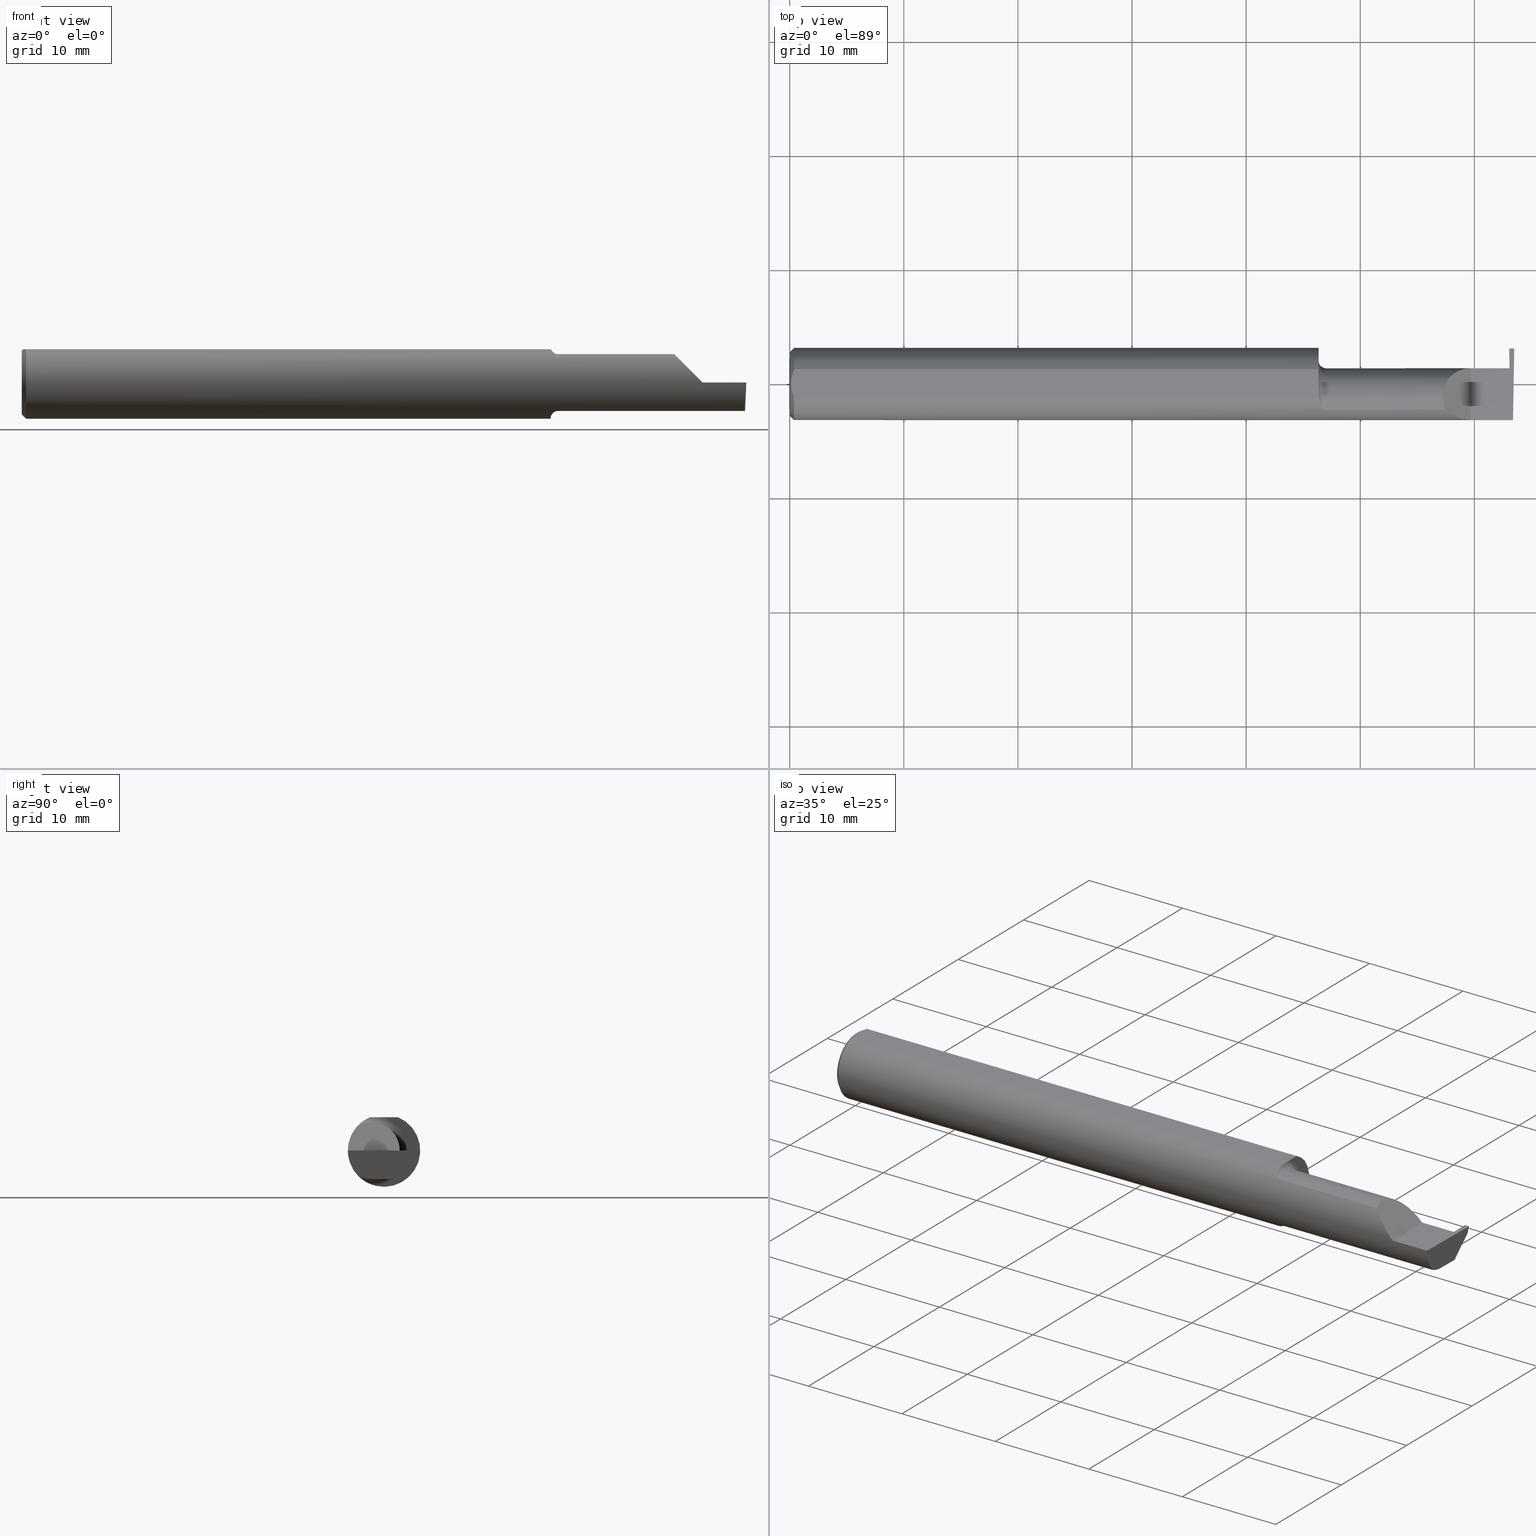
[diagram: canonical four-view strip — front | top / right | iso, engineering-drawing reading convention]
A machine part, canonical four-view strip (front | top / right | iso — engineering-drawing reading convention). The complete STEP part file that produces these views, byte-faithful:
ISO-10303-21;
HEADER;
FILE_DESCRIPTION (( 'STEP AP203' ),
    '1' );
FILE_NAME ('220785-GT017Q-10.STEP',
    '2024-07-08T18:39:14',
    ( '' ),
    ( '' ),
    'SwSTEP 2.0',
    'SolidWorks 2024',
    '' );
FILE_SCHEMA (( 'CONFIG_CONTROL_DESIGN' ));
ENDSEC;

DATA;
#1 = VERTEX_POINT ( 'NONE', #428 ) ;
#2 = DIRECTION ( 'NONE',  ( -0.000000000000000000, 1.000000000000000000, -0.000000000000000000 ) ) ;
#3 = CARTESIAN_POINT ( 'NONE',  ( 1.824999999999999956, -0.04385000000000001397, 0.000000000000000000 ) ) ;
#4 = VERTEX_POINT ( 'NONE', #366 ) ;
#5 = CARTESIAN_POINT ( 'NONE',  ( 2.350000000000000089, -0.2000000000000000111, 1.836970198721028825E-17 ) ) ;
#6 = ORIENTED_EDGE ( 'NONE', *, *, #619, .F. ) ;
#7 = AXIS2_PLACEMENT_3D ( 'NONE', #3, #240, #561 ) ;
#8 = FACE_OUTER_BOUND ( 'NONE', #787, .T. ) ;
#9 = FACE_OUTER_BOUND ( 'NONE', #124, .T. ) ;
#10 = EDGE_LOOP ( 'NONE', ( #613, #774, #528, #754, #262 ) ) ;
#11 = ADVANCED_FACE ( 'NONE', ( #70 ), #68, .F. ) ;
#12 = DIRECTION ( 'NONE',  ( 1.000000000000000000, 0.000000000000000000, 0.000000000000000000 ) ) ;
#13 = ADVANCED_FACE ( 'NONE', ( #563 ), #310, .T. ) ;
#14 = LINE ( 'NONE', #738, #353 ) ;
#15 = CARTESIAN_POINT ( 'NONE',  ( 1.825242610568498014, -0.03840785182185594421, -0.1189375631818110624 ) ) ;
#16 = CARTESIAN_POINT ( 'NONE',  ( 2.488918903665494398, 0.05424136207626864548, -0.1499086997478104033 ) ) ;
#17 = CARTESIAN_POINT ( 'NONE',  ( 2.487734127201016499, 0.1222413620301363024, -0.1499086240528644254 ) ) ;
#18 = CARTESIAN_POINT ( 'NONE',  ( 2.494536841675280670, -0.04385000000000003478, -0.09799999999999998990 ) ) ;
#19 = ORIENTED_EDGE ( 'NONE', *, *, #418, .T. ) ;
#20 = LINE ( 'NONE', #699, #442 ) ;
#21 = AXIS2_PLACEMENT_3D ( 'NONE', #669, #116, #554 ) ;
#22 = EDGE_CURVE ( 'NONE', #490, #511, #135, .T. ) ;
#23 = VECTOR ( 'NONE', #625, 39.37007874015748143 ) ;
#24 = CARTESIAN_POINT ( 'NONE',  ( 0.009410502401328750890, 0.03310661131402438395, 0.1148499999999999938 ) ) ;
#25 = EDGE_CURVE ( 'NONE', #541, #712, #765, .T. ) ;
#26 = ORIENTED_EDGE ( 'NONE', *, *, #55, .F. ) ;
#27 = DIRECTION ( 'NONE',  ( 0.02617296143184116158, -0.0004568507411563390110, 0.9996573249755575929 ) ) ;
#28 = LINE ( 'NONE', #203, #404 ) ;
#29 = ORIENTED_EDGE ( 'NONE', *, *, #584, .T. ) ;
#30 = APPLICATION_PROTOCOL_DEFINITION ( 'international standard', 'config_control_design', 1994, #172 ) ;
#31 = CARTESIAN_POINT ( 'NONE',  ( 0.01499999999999999944, 0.000000000000000000, 0.000000000000000000 ) ) ;
#32 = FACE_OUTER_BOUND ( 'NONE', #342, .T. ) ;
#33 = DATE_AND_TIME ( #587, #579 ) ;
#34 = LINE ( 'NONE', #709, #162 ) ;
#35 = AXIS2_PLACEMENT_3D ( 'NONE', #17, #626, #67 ) ;
#36 = LOCAL_TIME ( 11, 39, 14.00000000000000000, #472 ) ;
#37 = DIRECTION ( 'NONE',  ( -0.03866673033866090819, 0.3253246823342272331, 0.9448114812114909444 ) ) ;
#38 = ORIENTED_EDGE ( 'NONE', *, *, #154, .F. ) ;
#39 = PERSON_AND_ORGANIZATION ( #509, #150 ) ;
#40 = DIRECTION ( 'NONE',  ( -1.000000000000000000, -0.000000000000000000, -0.000000000000000000 ) ) ;
#41 = EDGE_CURVE ( 'NONE', #689, #659, #758, .T. ) ;
#42 = CARTESIAN_POINT ( 'NONE',  ( 1.829335346929731987, -0.06618116991733533072, 0.1062694618618283127 ) ) ;
#43 = ORIENTED_EDGE ( 'NONE', *, *, #617, .T. ) ;
#44 = PERSON_AND_ORGANIZATION_ROLE ( 'creator' ) ;
#45 = CARTESIAN_POINT ( 'NONE',  ( 1.826365755776839572, -0.03650543323727817313, 0.1148500000000000215 ) ) ;
#46 =( BOUNDED_CURVE ( )  B_SPLINE_CURVE ( 3, ( #770, #288, #123, #590 ),
 .UNSPECIFIED., .F., .T. ) 
 B_SPLINE_CURVE_WITH_KNOTS ( ( 4, 4 ),
 ( 0.2190942387645155864, 0.9826237902196512941 ),
 .UNSPECIFIED. ) 
 CURVE ( )  GEOMETRIC_REPRESENTATION_ITEM ( )  RATIONAL_B_SPLINE_CURVE ( ( 1.000000000000000000, 0.9520057322288819623, 0.9520057322288819623, 1.000000000000000000 ) ) 
 REPRESENTATION_ITEM ( '' )  );
#47 = CARTESIAN_POINT ( 'NONE',  ( 1.849999999999999867, -0.04385000000000001397, 0.000000000000000000 ) ) ;
#48 = ORIENTED_EDGE ( 'NONE', *, *, #482, .T. ) ;
#49 = DIRECTION ( 'NONE',  ( 0.000000000000000000, -0.7071067811865487940, -0.7071067811865462405 ) ) ;
#50 = CC_DESIGN_PERSON_AND_ORGANIZATION_ASSIGNMENT ( #405, #44, ( #365 ) ) ;
#51 = EDGE_CURVE ( 'NONE', #117, #271, #622, .T. ) ;
#52 = CIRCLE ( 'NONE', #256, 0.1098500000000000032 ) ;
#53 = VECTOR ( 'NONE', #253, 39.37007874015748143 ) ;
#54 = CARTESIAN_POINT ( 'NONE',  ( 1.834117122045984649, -0.07738857672837949619, 0.09808127502721006308 ) ) ;
#55 = EDGE_CURVE ( 'NONE', #708, #359, #395, .T. ) ;
#56 = VERTEX_POINT ( 'NONE', #449 ) ;
#57 = DATE_TIME_ROLE ( 'classification_date' ) ;
#58 = DIRECTION ( 'NONE',  ( -1.000000000000000000, -0.000000000000000000, -0.000000000000000000 ) ) ;
#59 = ORIENTED_EDGE ( 'NONE', *, *, #132, .F. ) ;
#60 = FACE_OUTER_BOUND ( 'NONE', #386, .T. ) ;
#61 = VERTEX_POINT ( 'NONE', #266 ) ;
#62 = DIRECTION ( 'NONE',  ( 1.000000000000000000, 0.000000000000000000, 0.000000000000000000 ) ) ;
#63 = AXIS2_PLACEMENT_3D ( 'NONE', #384, #516, #574 ) ;
#64 = ORIENTED_EDGE ( 'NONE', *, *, #186, .T. ) ;
#65 = VECTOR ( 'NONE', #535, 39.37007874015748143 ) ;
#66 = DIRECTION ( 'NONE',  ( -1.000000000000000000, 0.000000000000000000, 1.224646799147352221E-16 ) ) ;
#67 = DIRECTION ( 'NONE',  ( 0.03490478697967554916, 0.000000000000000000, -0.9993906422645267851 ) ) ;
#68 = PLANE ( 'NONE',  #677 ) ;
#69 = CARTESIAN_POINT ( 'NONE',  ( 1.824999999999999956, 0.05414999999999998981, 8.266365894244626938E-17 ) ) ;
#70 = FACE_OUTER_BOUND ( 'NONE', #592, .T. ) ;
#71 = LINE ( 'NONE', #308, #23 ) ;
#72 = EDGE_CURVE ( 'NONE', #671, #403, #440, .T. ) ;
#73 = CARTESIAN_POINT ( 'NONE',  ( 1.833278800716857893, -0.07573621487658335760, -0.09938639293507173234 ) ) ;
#74 = EDGE_CURVE ( 'NONE', #455, #483, #248, .T. ) ;
#75 = VERTEX_POINT ( 'NONE', #140 ) ;
#76 = EDGE_CURVE ( 'NONE', #471, #403, #28, .T. ) ;
#77 = VECTOR ( 'NONE', #583, 39.37007874015748143 ) ;
#78 = LINE ( 'NONE', #312, #287 ) ;
#79 = SECURITY_CLASSIFICATION ( '', '', #537 ) ;
#80 = B_SPLINE_CURVE_WITH_KNOTS ( 'NONE', 3,
 ( #565, #131, #623, #372, #684, #199, #73, #630, #742, #429, #446, #143 ),
 .UNSPECIFIED., .F., .F.,
 ( 4, 2, 2, 2, 2, 4 ),
 ( 1.963988863453036158E-07, 0.0002052720857047482799, 0.0004103477725231512228, 0.0008204991461599670834, 0.001230650519796782673, 0.001640801893433598479 ),
 .UNSPECIFIED. ) ;
#81 = CARTESIAN_POINT ( 'NONE',  ( 2.483482208140546099, 0.05115612325138135796, -0.02403823089877876393 ) ) ;
#82 = CARTESIAN_POINT ( 'NONE',  ( 2.263628075281542529, -0.09015216647662421812, 0.08637192471845822617 ) ) ;
#83 = DIRECTION ( 'NONE',  ( -0.7071067811865492381, 0.000000000000000000, -0.7071067811865459074 ) ) ;
#84 = CARTESIAN_POINT ( 'NONE',  ( 0.01193974418109659125, 0.04115525648180412555, 0.1148500000000000215 ) ) ;
#85 = ORIENTED_EDGE ( 'NONE', *, *, #168, .T. ) ;
#86 = APPROVAL_ROLE ( '' ) ;
#87 = CARTESIAN_POINT ( 'NONE',  ( 1.824999999999999734, 0.1541499999999999537, 0.000000000000000000 ) ) ;
#88 = CARTESIAN_POINT ( 'NONE',  ( 2.252000000000000668, -0.04385000000000001397, 0.09800000000000000377 ) ) ;
#89 = ORIENTED_EDGE ( 'NONE', *, *, #385, .T. ) ;
#90 = CARTESIAN_POINT ( 'NONE',  ( 2.495688583004118666, -0.1248499869621840785, -5.705736120969982501E-05 ) ) ;
#91 = AXIS2_PLACEMENT_3D ( 'NONE', #180, #362, #437 ) ;
#92 = DIRECTION ( 'NONE',  ( -0.000000000000000000, 2.817424862263051475E-16, 1.000000000000000000 ) ) ;
#93 = ORIENTED_EDGE ( 'NONE', *, *, #730, .T. ) ;
#94 = LINE ( 'NONE', #149, #458 ) ;
#95 = CARTESIAN_POINT ( 'NONE',  ( 0.000000000000000000, 0.000000000000000000, 0.000000000000000000 ) ) ;
#96 = ORIENTED_EDGE ( 'NONE', *, *, #530, .T. ) ;
#97 = LINE ( 'NONE', #394, #663 ) ;
#98 = EDGE_CURVE ( 'NONE', #368, #257, #753, .T. ) ;
#99 = CARTESIAN_POINT ( 'NONE',  ( 2.292592929112563738, 0.05415000000000004532, 0.05740707088743669112 ) ) ;
#100 = ORIENTED_EDGE ( 'NONE', *, *, #585, .F. ) ;
#101 = DIRECTION ( 'NONE',  ( 0.05230942393459275114, 0.000000000000000000, -0.9986309249005015376 ) ) ;
#102 = VECTOR ( 'NONE', #118, 39.37007874015748143 ) ;
#103 = FACE_OUTER_BOUND ( 'NONE', #419, .T. ) ;
#104 = CIRCLE ( 'NONE', #555, 0.1248500000000000026 ) ;
#105 = ORIENTED_EDGE ( 'NONE', *, *, #207, .T. ) ;
#106 = CALENDAR_DATE ( 2024, 8, 7 ) ;
#107 = DIRECTION ( 'NONE',  ( -1.000000000000000000, -0.000000000000000000, -0.000000000000000000 ) ) ;
#108 = CARTESIAN_POINT ( 'NONE',  ( 0.01499999999999999944, 0.000000000000000000, -0.1248500000000000026 ) ) ;
#109 = ORIENTED_EDGE ( 'NONE', *, *, #242, .F. ) ;
#110 = ADVANCED_FACE ( 'NONE', ( #457 ), #507, .F. ) ;
#111 = CARTESIAN_POINT ( 'NONE',  ( 2.166249999999999787, -0.09015216647662482874, -0.08637192471845768493 ) ) ;
#112 = ADVANCED_FACE ( 'NONE', ( #519 ), #255, .T. ) ;
#113 = CARTESIAN_POINT ( 'NONE',  ( 2.399999999999999911, 0.1221499999999999808, -3.306546357697866753E-19 ) ) ;
#114 = ORIENTED_EDGE ( 'NONE', *, *, #327, .F. ) ;
#115 = SHAPE_DEFINITION_REPRESENTATION ( #691, #141 ) ;
#116 = DIRECTION ( 'NONE',  ( 1.575122098794466572E-15, -0.9999998142845093474, -0.0006094513490878165993 ) ) ;
#117 = VERTEX_POINT ( 'NONE', #639 ) ;
#118 = DIRECTION ( 'NONE',  ( 0.7071067811865476838, 8.659560562354930393E-17, 0.7071067811865473507 ) ) ;
#119 = ORIENTED_EDGE ( 'NONE', *, *, #165, .F. ) ;
#120 = CARTESIAN_POINT ( 'NONE',  ( 2.488116473413796825, -0.2002070484001042538, 1.455312279637640045E-18 ) ) ;
#121 = ORIENTED_EDGE ( 'NONE', *, *, #154, .T. ) ;
#122 = DIMENSIONAL_EXPONENTS ( 1.000000000000000000, 0.000000000000000000, 0.000000000000000000, 0.000000000000000000, 0.000000000000000000, 0.000000000000000000, 0.000000000000000000 ) ;
#123 = CARTESIAN_POINT ( 'NONE',  ( 2.494835769263151537, -0.1248351010429638308, -0.03262966116142157480 ) ) ;
#124 = EDGE_LOOP ( 'NONE', ( #504, #736, #29, #218, #179, #520, #423, #232, #444, #201, #668, #426, #38, #610 ) ) ;
#125 = AXIS2_PLACEMENT_3D ( 'NONE', #358, #655, #49 ) ;
#126 = CC_DESIGN_SECURITY_CLASSIFICATION ( #79, ( #365 ) ) ;
#127 = CARTESIAN_POINT ( 'NONE',  ( 2.485853341463134747, 0.03970102213383011613, -0.06931214282740411070 ) ) ;
#128 = ORIENTED_EDGE ( 'NONE', *, *, #208, .F. ) ;
#129 = FACE_OUTER_BOUND ( 'NONE', #523, .T. ) ;
#130 = ADVANCED_FACE ( 'NONE', ( #328 ), #477, .F. ) ;
#131 = CARTESIAN_POINT ( 'NONE',  ( 1.847259638933030468, -0.09015216647662496752, -0.08637192471845754616 ) ) ;
#132 = EDGE_CURVE ( 'NONE', #575, #277, #52, .T. ) ;
#133 = ORIENTED_EDGE ( 'NONE', *, *, #676, .T. ) ;
#134 = CARTESIAN_POINT ( 'NONE',  ( 1.824999999999999956, -0.04385000000000001397, 0.09800000000000000377 ) ) ;
#135 = CIRCLE ( 'NONE', #195, 0.02500000000000007425 ) ;
#136 = VECTOR ( 'NONE', #275, 39.37007874015748143 ) ;
#137 = ORIENTED_EDGE ( 'NONE', *, *, #724, .F. ) ;
#138 = CC_DESIGN_APPROVAL ( #725, ( #365 ) ) ;
#139 = DIRECTION ( 'NONE',  ( -1.000000000000000000, -0.000000000000000000, -0.000000000000000000 ) ) ;
#140 = CARTESIAN_POINT ( 'NONE',  ( 2.495997960279815686, 0.03988613728104775658, -0.09799999999999996214 ) ) ;
#141 = ADVANCED_BREP_SHAPE_REPRESENTATION ( '220785-GT017Q-10', ( #710, #236 ), #751 ) ;
#142 = EDGE_LOOP ( 'NONE', ( #315, #226, #322, #653 ) ) ;
#143 = CARTESIAN_POINT ( 'NONE',  ( 1.825756598855983848, -0.04384999999999998621, -0.1168961077196328247 ) ) ;
#144 = EDGE_LOOP ( 'NONE', ( #532, #159, #345, #85 ) ) ;
#145 =( LENGTH_UNIT ( ) NAMED_UNIT ( * ) SI_UNIT ( $, .METRE. ) );
#146 = CARTESIAN_POINT ( 'NONE',  ( 2.493072779947982820, -0.1248043149033065402, -0.09996577117162359916 ) ) ;
#147 = DIRECTION ( 'NONE',  ( -0.03042981077198583101, -0.3254173858243484818, -0.9450807116958995779 ) ) ;
#148 = ORIENTED_EDGE ( 'NONE', *, *, #470, .F. ) ;
#149 = CARTESIAN_POINT ( 'NONE',  ( 1.824999999999999956, -0.04385000000000000703, -0.09800000000000000377 ) ) ;
#150 = ORGANIZATION ( 'UNSPECIFIED', 'UNSPECIFIED', '' ) ;
#151 = ORIENTED_EDGE ( 'NONE', *, *, #385, .F. ) ;
#152 = DATE_AND_TIME ( #462, #460 ) ;
#153 = CARTESIAN_POINT ( 'NONE',  ( 1.825756598855983848, -0.04384999999999998621, -0.1168961077196328247 ) ) ;
#154 = EDGE_CURVE ( 'NONE', #476, #400, #670, .T. ) ;
#155 = CARTESIAN_POINT ( 'NONE',  ( 1.849999999999999867, -0.09015216647662482874, 0.08637192471845769881 ) ) ;
#156 = ORIENTED_EDGE ( 'NONE', *, *, #564, .F. ) ;
#157 = LINE ( 'NONE', #335, #136 ) ;
#158 = LINE ( 'NONE', #486, #65 ) ;
#159 = ORIENTED_EDGE ( 'NONE', *, *, #76, .T. ) ;
#160 = APPROVAL_STATUS ( 'not_yet_approved' ) ;
#161 = LINE ( 'NONE', #120, #478 ) ;
#162 = VECTOR ( 'NONE', #714, 39.37007874015748143 ) ;
#163 = CC_DESIGN_DATE_AND_TIME_ASSIGNMENT ( #33, #466, ( #325 ) ) ;
#164 = LINE ( 'NONE', #546, #678 ) ;
#165 = EDGE_CURVE ( 'NONE', #257, #511, #688, .T. ) ;
#166 = ORIENTED_EDGE ( 'NONE', *, *, #213, .T. ) ;
#167 = CARTESIAN_POINT ( 'NONE',  ( 1.824999999999999956, -0.04385000000000001397, 0.000000000000000000 ) ) ;
#168 = EDGE_CURVE ( 'NONE', #671, #1, #540, .T. ) ;
#169 = CARTESIAN_POINT ( 'NONE',  ( 0.004999999999999964542, -0.008410771716546819321, 0.1148500000000000215 ) ) ;
#170 = ORIENTED_EDGE ( 'NONE', *, *, #98, .F. ) ;
#171 = CARTESIAN_POINT ( 'NONE',  ( 1.824999999999999734, 0.0001781444078671173391, 0.1148500000000000076 ) ) ;
#172 = APPLICATION_CONTEXT ( 'configuration controlled 3d designs of mechanical parts and assemblies' ) ;
#173 = ORIENTED_EDGE ( 'NONE', *, *, #329, .T. ) ;
#174 = CARTESIAN_POINT ( 'NONE',  ( 1.826090261609496501, -0.02916889382056610247, 0.1148499999999999938 ) ) ;
#175 = CIRCLE ( 'NONE', #777, 0.09800000000000001765 ) ;
#176 = VERTEX_POINT ( 'NONE', #108 ) ;
#177 = CARTESIAN_POINT ( 'NONE',  ( 1.826365755776839350, -0.04470142088177659484, 0.1148500000000000076 ) ) ;
#178 = EDGE_CURVE ( 'NONE', #455, #536, #46, .T. ) ;
#179 = ORIENTED_EDGE ( 'NONE', *, *, #235, .T. ) ;
#180 = CARTESIAN_POINT ( 'NONE',  ( 1.824999999999999956, -0.04385000000000001397, 0.000000000000000000 ) ) ;
#181 = CARTESIAN_POINT ( 'NONE',  ( 2.252000000000000668, -0.04385000000000001397, 0.09800000000000000377 ) ) ;
#182 = ORIENTED_EDGE ( 'NONE', *, *, #436, .T. ) ;
#183 = DIRECTION ( 'NONE',  ( 0.000000000000000000, -0.3255681544571576991, -0.9455185755993165131 ) ) ;
#184 = ORIENTED_EDGE ( 'NONE', *, *, #265, .F. ) ;
#185 = ADVANCED_FACE ( 'NONE', ( #707 ), #701, .F. ) ;
#186 = EDGE_CURVE ( 'NONE', #575, #176, #158, .T. ) ;
#187 = CARTESIAN_POINT ( 'NONE',  ( 1.824999999999999734, -0.1248500000000000165, 0.1148500000000000076 ) ) ;
#188 = ORIENTED_EDGE ( 'NONE', *, *, #697, .F. ) ;
#189 = CYLINDRICAL_SURFACE ( 'NONE', #91, 0.09800000000000000377 ) ;
#190 = CARTESIAN_POINT ( 'NONE',  ( 2.487356049968028060, 0.03988613728104833250, -0.09799999999999980949 ) ) ;
#191 = CARTESIAN_POINT ( 'NONE',  ( 1.849999999999999867, -0.04385000000000001397, 0.1230000000000000121 ) ) ;
#192 = CARTESIAN_POINT ( 'NONE',  ( 2.350000000000000089, -0.2000000000000000111, 1.836970198721028825E-17 ) ) ;
#193 = CYLINDRICAL_SURFACE ( 'NONE', #716, 0.1248500000000000026 ) ;
#194 = DIRECTION ( 'NONE',  ( 0.000000000000000000, 0.000000000000000000, -1.000000000000000000 ) ) ;
#195 = AXIS2_PLACEMENT_3D ( 'NONE', #191, #247, #194 ) ;
#196 = VECTOR ( 'NONE', #453, 39.37007874015748143 ) ;
#197 = EDGE_LOOP ( 'NONE', ( #499, #785, #433, #771, #137 ) ) ;
#198 = PERSON_AND_ORGANIZATION_ROLE ( 'design_owner' ) ;
#199 = CARTESIAN_POINT ( 'NONE',  ( 1.835226514481664628, -0.07966992494485865273, -0.09623747760188201827 ) ) ;
#200 = DIRECTION ( 'NONE',  ( 0.05230943362268284519, 0.0006086169641122234075, -0.9986307389317961025 ) ) ;
#201 = ORIENTED_EDGE ( 'NONE', *, *, #527, .F. ) ;
#202 = CARTESIAN_POINT ( 'NONE',  ( 2.482499999999999929, 0.05414999999999997593, 8.266348525252012935E-17 ) ) ;
#203 = CARTESIAN_POINT ( 'NONE',  ( 2.499907402661638578, 0.1211597610527450630, -0.002875862722116008779 ) ) ;
#204 = DIRECTION ( 'NONE',  ( 0.000000000000000000, 0.000000000000000000, 1.000000000000000000 ) ) ;
#205 = UNCERTAINTY_MEASURE_WITH_UNIT (LENGTH_MEASURE( 1.000000000000000082E-05 ), #215, 'distance_accuracy_value', 'NONE');
#206 = DIRECTION ( 'NONE',  ( 3.192376091676806335E-05, 0.9999999994904366085, -2.817425088418965867E-16 ) ) ;
#207 = EDGE_CURVE ( 'NONE', #56, #759, #307, .T. ) ;
#208 = EDGE_CURVE ( 'NONE', #1, #471, #164, .T. ) ;
#209 = ORIENTED_EDGE ( 'NONE', *, *, #327, .T. ) ;
#210 = COORDINATED_UNIVERSAL_TIME_OFFSET ( 8, 0, .BEHIND. ) ;
#211 = AXIS2_PLACEMENT_3D ( 'NONE', #87, #521, #212 ) ;
#212 = DIRECTION ( 'NONE',  ( 0.000000000000000000, 0.000000000000000000, -1.000000000000000000 ) ) ;
#213 = EDGE_CURVE ( 'NONE', #271, #632, #459, .T. ) ;
#214 = ORIENTED_EDGE ( 'NONE', *, *, #679, .T. ) ;
#215 =( CONVERSION_BASED_UNIT ( 'INCH', #747 ) LENGTH_UNIT ( ) NAMED_UNIT ( #122 ) );
#216 = CARTESIAN_POINT ( 'NONE',  ( 2.482499999999999929, 0.05414999123725500879, -4.144270477499314721E-05 ) ) ;
#217 = CARTESIAN_POINT ( 'NONE',  ( 0.004999999999999990563, 1.454187663965904829E-17, 0.1148500000000000076 ) ) ;
#218 = ORIENTED_EDGE ( 'NONE', *, *, #562, .T. ) ;
#219 = CARTESIAN_POINT ( 'NONE',  ( 0.000000000000000000, 0.000000000000000000, -0.1098500000000000032 ) ) ;
#220 = CARTESIAN_POINT ( 'NONE',  ( 0.01195732443765547617, -0.04120008761723503027, 0.1148500000000000076 ) ) ;
#221 = ORIENTED_EDGE ( 'NONE', *, *, #213, .F. ) ;
#222 = COORDINATED_UNIVERSAL_TIME_OFFSET ( 8, 0, .BEHIND. ) ;
#223 = CARTESIAN_POINT ( 'NONE',  ( 1.825400391910593445, -0.01449986171080068845, 0.1148500000000000076 ) ) ;
#224 = VECTOR ( 'NONE', #62, 39.37007874015748143 ) ;
#225 = CC_DESIGN_APPROVAL ( #300, ( #325 ) ) ;
#226 = ORIENTED_EDGE ( 'NONE', *, *, #482, .F. ) ;
#227 = CARTESIAN_POINT ( 'NONE',  ( 1.826365755776839350, -0.04385000000000001397, 0.1148500000000000076 ) ) ;
#228 = DIRECTION ( 'NONE',  ( 0.000000000000000000, 0.000000000000000000, 1.000000000000000000 ) ) ;
#229 = ORIENTED_EDGE ( 'NONE', *, *, #165, .T. ) ;
#230 = PERSON_AND_ORGANIZATION ( #509, #150 ) ;
#231 = CARTESIAN_POINT ( 'NONE',  ( 2.497382703856816377, 0.1221956850741156286, -0.09996573249755572044 ) ) ;
#232 = ORIENTED_EDGE ( 'NONE', *, *, #617, .F. ) ;
#233 = ADVANCED_FACE ( 'NONE', ( #32 ), #647, .F. ) ;
#234 = CARTESIAN_POINT ( 'NONE',  ( 2.487353376795599758, -0.04385000000000004172, -0.09799999999999998990 ) ) ;
#235 = EDGE_CURVE ( 'NONE', #396, #368, #644, .T. ) ;
#236 = AXIS2_PLACEMENT_3D ( 'NONE', #323, #524, #393 ) ;
#237 = ORIENTED_EDGE ( 'NONE', *, *, #598, .T. ) ;
#238 = CYLINDRICAL_SURFACE ( 'NONE', #391, 0.09800000000000000377 ) ;
#239 = VERTEX_POINT ( 'NONE', #531 ) ;
#240 = DIRECTION ( 'NONE',  ( -1.000000000000000000, -0.000000000000000000, -0.000000000000000000 ) ) ;
#241 = ORIENTED_EDGE ( 'NONE', *, *, #76, .F. ) ;
#242 = EDGE_CURVE ( 'NONE', #759, #511, #175, .T. ) ;
#243 = DIRECTION ( 'NONE',  ( -0.03489418134011375294, -0.0006090802009084598069, 0.9993908270190957621 ) ) ;
#244 = DIRECTION ( 'NONE',  ( -0.7071067811865459074, 0.000000000000000000, 0.7071067811865492381 ) ) ;
#245 = ORIENTED_EDGE ( 'NONE', *, *, #388, .F. ) ;
#246 = DIRECTION ( 'NONE',  ( 0.000000000000000000, 0.000000000000000000, 1.000000000000000000 ) ) ;
#247 = DIRECTION ( 'NONE',  ( 0.000000000000000000, -1.000000000000000000, 0.000000000000000000 ) ) ;
#248 =( BOUNDED_CURVE ( )  B_SPLINE_CURVE ( 3, ( #634, #578, #692, #18 ),
 .UNSPECIFIED., .F., .T. ) 
 B_SPLINE_CURVE_WITH_KNOTS ( ( 4, 4 ),
 ( 0.09562308769844128642, 0.5877155292609013149 ),
 .UNSPECIFIED. ) 
 CURVE ( )  GEOMETRIC_REPRESENTATION_ITEM ( )  RATIONAL_B_SPLINE_CURVE ( ( 1.000000000000000000, 0.9799220177372778284, 0.9799220177372778284, 1.000000000000000000 ) ) 
 REPRESENTATION_ITEM ( '' )  );
#249 = CARTESIAN_POINT ( 'NONE',  ( 1.824999999999999734, 0.0001781444078671173391, 0.1148500000000000076 ) ) ;
#250 = CARTESIAN_POINT ( 'NONE',  ( 0.01499999999999987454, 0.04895916665957496944, 0.1148500000000000076 ) ) ;
#251 = ORIENTED_EDGE ( 'NONE', *, *, #584, .F. ) ;
#252 = PLANE ( 'NONE',  #638 ) ;
#253 = DIRECTION ( 'NONE',  ( 1.000000000000000000, 0.000000000000000000, 0.000000000000000000 ) ) ;
#254 = CARTESIAN_POINT ( 'NONE',  ( 2.252000000000000668, -0.06008937020638503712, 0.09799999999999998990 ) ) ;
#255 = CONICAL_SURFACE ( 'NONE', #284, 0.1248500000000000026, 0.7853981633974480570 ) ;
#256 = AXIS2_PLACEMENT_3D ( 'NONE', #95, #333, #586 ) ;
#257 = VERTEX_POINT ( 'NONE', #776 ) ;
#258 = DIRECTION ( 'NONE',  ( 0.9986309243930283630, -3.188005489064428923E-05, 0.05230942390801072289 ) ) ;
#259 = CIRCLE ( 'NONE', #591, 0.02500000000000007425 ) ;
#260 = DIRECTION ( 'NONE',  ( -1.000000000000000000, -0.000000000000000000, -0.000000000000000000 ) ) ;
#261 = CARTESIAN_POINT ( 'NONE',  ( 0.004999999999999962808, 0.008410227287019804779, 0.1148500000000000076 ) ) ;
#262 = ORIENTED_EDGE ( 'NONE', *, *, #186, .F. ) ;
#263 = DIRECTION ( 'NONE',  ( -1.000000000000000000, -0.000000000000000000, -0.000000000000000000 ) ) ;
#264 = PRODUCT_RELATED_PRODUCT_CATEGORY ( 'detail', '', ( #332 ) ) ;
#265 = EDGE_CURVE ( 'NONE', #257, #61, #567, .T. ) ;
#266 = CARTESIAN_POINT ( 'NONE',  ( 2.350000000000000089, 0.05414999999999988572, 1.836970198721028825E-17 ) ) ;
#267 = ORIENTED_EDGE ( 'NONE', *, *, #22, .T. ) ;
#268 =( NAMED_UNIT ( * ) PLANE_ANGLE_UNIT ( ) SI_UNIT ( $, .RADIAN. ) );
#269 = CARTESIAN_POINT ( 'NONE',  ( 1.826365755776839350, -0.04385000000000001397, 0.1148500000000000076 ) ) ;
#270 = CARTESIAN_POINT ( 'NONE',  ( 1.847502509400849924, -0.09015216647698162666, 0.08637192471808539940 ) ) ;
#271 = VERTEX_POINT ( 'NONE', #336 ) ;
#272 = VECTOR ( 'NONE', #206, 39.37007874015748854 ) ;
#273 = PERSON_AND_ORGANIZATION ( #509, #150 ) ;
#274 = AXIS2_PLACEMENT_3D ( 'NONE', #113, #603, #183 ) ;
#275 = DIRECTION ( 'NONE',  ( -0.03699114979479237175, 0.7066228325057374304, 0.7066228325057348769 ) ) ;
#276 = CARTESIAN_POINT ( 'NONE',  ( 2.483482208140547431, -2.430858181986507827, -0.02555089814648706797 ) ) ;
#277 = VERTEX_POINT ( 'NONE', #711 ) ;
#278 = CARTESIAN_POINT ( 'NONE',  ( 0.01499999999999999944, 0.000000000000000000, 0.000000000000000000 ) ) ;
#279 = CARTESIAN_POINT ( 'NONE',  ( 1.836053217927789527, -0.08094812012701396720, 0.09514231764808572800 ) ) ;
#280 = ORIENTED_EDGE ( 'NONE', *, *, #505, .F. ) ;
#281 = DIRECTION ( 'NONE',  ( -0.9995051766793262571, 0.01744044634007211117, 0.02617694830739122208 ) ) ;
#282 = DIRECTION ( 'NONE',  ( 0.000000000000000000, 0.000000000000000000, 1.000000000000000000 ) ) ;
#283 = ORIENTED_EDGE ( 'NONE', *, *, #242, .T. ) ;
#284 = AXIS2_PLACEMENT_3D ( 'NONE', #454, #695, #390 ) ;
#285 = DIRECTION ( 'NONE',  ( 0.04089968566326914606, 0.0006089413954177153856, -0.9991630722274631449 ) ) ;
#286 = AXIS2_PLACEMENT_3D ( 'NONE', #594, #767, #228 ) ;
#287 = VECTOR ( 'NONE', #12, 39.37007874015748143 ) ;
#288 = CARTESIAN_POINT ( 'NONE',  ( 2.494256244271084721, -0.1126860773865890480, -0.06285177167860772629 ) ) ;
#289 = VERTEX_POINT ( 'NONE', #651 ) ;
#290 = APPROVAL_DATE_TIME ( #605, #725 ) ;
#291 = LINE ( 'NONE', #111, #340 ) ;
#292 = ADVANCED_FACE ( 'NONE', ( #348 ), #481, .F. ) ;
#293 = ORIENTED_EDGE ( 'NONE', *, *, #41, .T. ) ;
#294 = CARTESIAN_POINT ( 'NONE',  ( 2.483482208140546099, 0.1138861372810479888, -0.02400000000000000050 ) ) ;
#295 = EDGE_CURVE ( 'NONE', #359, #75, #369, .T. ) ;
#296 = ORIENTED_EDGE ( 'NONE', *, *, #295, .T. ) ;
#297 = CARTESIAN_POINT ( 'NONE',  ( 1.826362484150211518, -0.04555293709217374948, 0.1148500000000000076 ) ) ;
#298 = AXIS2_PLACEMENT_3D ( 'NONE', #339, #40, #534 ) ;
#299 = ORIENTED_EDGE ( 'NONE', *, *, #72, .T. ) ;
#300 = APPROVAL ( #763, 'UNSPECIFIED' ) ;
#301 = ADVANCED_FACE ( 'NONE', ( #9 ), #193, .T. ) ;
#302 = FACE_OUTER_BOUND ( 'NONE', #604, .T. ) ;
#303 = CARTESIAN_POINT ( 'NONE',  ( 0.000000000000000000, 0.000000000000000000, 0.000000000000000000 ) ) ;
#304 = DIRECTION ( 'NONE',  ( 0.000000000000000000, 0.000000000000000000, 1.000000000000000000 ) ) ;
#305 = CARTESIAN_POINT ( 'NONE',  ( 2.483482208140547431, -2.430858181986507827, -0.02555089814648706797 ) ) ;
#306 = DIRECTION ( 'NONE',  ( 0.000000000000000000, 0.000000000000000000, -1.000000000000000000 ) ) ;
#307 = B_SPLINE_CURVE_WITH_KNOTS ( 'NONE', 3,
 ( #344, #427, #42, #54, #279, #399, #673, #363, #270, #155 ),
 .UNSPECIFIED., .F., .F.,
 ( 4, 2, 2, 2, 4 ),
 ( 5.065792501958445587E-07, 0.0007388407002080924022, 0.001108007760687040964, 0.001292591290926509281, 0.001477174821165978032 ),
 .UNSPECIFIED. ) ;
#308 = CARTESIAN_POINT ( 'NONE',  ( 2.499999999999999556, 0.05415000000000005920, 4.902705984595532466E-32 ) ) ;
#309 = DIRECTION ( 'NONE',  ( -1.000000000000000000, -0.000000000000000000, -0.000000000000000000 ) ) ;
#310 = CONICAL_SURFACE ( 'NONE', #63, 0.1248500000000000026, 0.7853981633974480570 ) ;
#311 = ORIENTED_EDGE ( 'NONE', *, *, #25, .T. ) ;
#312 = CARTESIAN_POINT ( 'NONE',  ( 2.166249999999999787, -0.09015216647662482874, 0.08637192471845768493 ) ) ;
#313 = LINE ( 'NONE', #305, #732 ) ;
#314 = CARTESIAN_POINT ( 'NONE',  ( 1.825756598855983848, -0.04384999999999998621, -0.1168961077196328247 ) ) ;
#315 = ORIENTED_EDGE ( 'NONE', *, *, #168, .F. ) ;
#316 = EDGE_CURVE ( 'NONE', #277, #575, #430, .T. ) ;
#317 = CARTESIAN_POINT ( 'NONE',  ( 2.487354867654527624, 0.002850604310161131225, -0.09799999999999998990 ) ) ;
#318 = CARTESIAN_POINT ( 'NONE',  ( 1.849999999999999867, -0.09015216647662482874, 0.08637192471845769881 ) ) ;
#319 = DIRECTION ( 'NONE',  ( -1.000000000000000000, -0.000000000000000000, -0.000000000000000000 ) ) ;
#320 = CARTESIAN_POINT ( 'NONE',  ( 2.500000000000000000, 0.07735323199453268683, -0.09800000000000001765 ) ) ;
#321 = VECTOR ( 'NONE', #573, 39.37007874015748143 ) ;
#322 = ORIENTED_EDGE ( 'NONE', *, *, #724, .T. ) ;
#323 = CARTESIAN_POINT ( 'NONE',  ( 0.000000000000000000, 0.000000000000000000, 0.000000000000000000 ) ) ;
#324 = APPROVAL_PERSON_ORGANIZATION ( #512, #725, #484 ) ;
#325 = PRODUCT_DEFINITION ( 'UNKNOWN', '', #365, #491 ) ;
#326 = CARTESIAN_POINT ( 'NONE',  ( 2.483160734290017047, 0.05314349951121604548, -0.01618353831829645942 ) ) ;
#327 = EDGE_CURVE ( 'NONE', #61, #541, #618, .T. ) ;
#328 = FACE_OUTER_BOUND ( 'NONE', #414, .T. ) ;
#329 = EDGE_CURVE ( 'NONE', #681, #476, #80, .T. ) ;
#330 = ORIENTED_EDGE ( 'NONE', *, *, #448, .F. ) ;
#331 = CARTESIAN_POINT ( 'NONE',  ( 1.849999999999999867, -0.04385000000000001397, 0.000000000000000000 ) ) ;
#332 = PRODUCT ( '220785-GT017Q-10', '220785-GT017Q-10', '', ( #768 ) ) ;
#333 = DIRECTION ( 'NONE',  ( -1.000000000000000000, -0.000000000000000000, -0.000000000000000000 ) ) ;
#334 = ORIENTED_EDGE ( 'NONE', *, *, #416, .T. ) ;
#335 = CARTESIAN_POINT ( 'NONE',  ( 2.483367975664828364, 0.1160682612756623600, -0.02181787600538563632 ) ) ;
#336 = CARTESIAN_POINT ( 'NONE',  ( 0.004999999999999990563, 1.454187663965904829E-17, 0.1148500000000000076 ) ) ;
#337 = EDGE_LOOP ( 'NONE', ( #330, #245, #552, #629, #156 ) ) ;
#338 = AXIS2_PLACEMENT_3D ( 'NONE', #276, #782, #475 ) ;
#339 = CARTESIAN_POINT ( 'NONE',  ( 1.849999999999999867, -0.04385000000000001397, 0.000000000000000000 ) ) ;
#340 = VECTOR ( 'NONE', #608, 39.37007874015748143 ) ;
#341 = CARTESIAN_POINT ( 'NONE',  ( 2.482376652927104743, 0.1231877874455570426, 0.003013953588102197788 ) ) ;
#342 = EDGE_LOOP ( 'NONE', ( #739, #214, #582 ) ) ;
#343 = CARTESIAN_POINT ( 'NONE',  ( 0.000000000000000000, -0.04895916665957456698, 0.1148500000000000076 ) ) ;
#344 = CARTESIAN_POINT ( 'NONE',  ( 1.826326891871132618, -0.04895916665958127689, 0.1148500000000000076 ) ) ;
#345 = ORIENTED_EDGE ( 'NONE', *, *, #72, .F. ) ;
#346 = PERSON_AND_ORGANIZATION_ROLE ( 'classification_officer' ) ;
#347 = CARTESIAN_POINT ( 'NONE',  ( 1.826326891871132618, -0.04895916665958127689, 0.1148500000000000076 ) ) ;
#348 = FACE_OUTER_BOUND ( 'NONE', #144, .T. ) ;
#349 = ORIENTED_EDGE ( 'NONE', *, *, #436, .F. ) ;
#350 = APPROVAL_ROLE ( '' ) ;
#351 = CARTESIAN_POINT ( 'NONE',  ( 2.483482208140546099, 0.05416464901750961403, -0.02403639734835131062 ) ) ;
#352 = EDGE_CURVE ( 'NONE', #289, #689, #313, .T. ) ;
#353 = VECTOR ( 'NONE', #749, 39.37007874015748143 ) ;
#354 = TOROIDAL_SURFACE ( 'NONE', #544, 0.1230000000000000121, 0.02500000000000007078 ) ;
#355 = ADVANCED_FACE ( 'NONE', ( #740 ), #500, .F. ) ;
#356 = ADVANCED_FACE ( 'NONE', ( #302 ), #557, .T. ) ;
#357 = ORIENTED_EDGE ( 'NONE', *, *, #757, .T. ) ;
#358 = CARTESIAN_POINT ( 'NONE',  ( 2.399999999999999911, 0.1138861372810479888, -0.02400000000000000050 ) ) ;
#359 = VERTEX_POINT ( 'NONE', #190 ) ;
#360 = CARTESIAN_POINT ( 'NONE',  ( 1.849999999999999867, -0.04385000000000000009, -0.1230000000000000121 ) ) ;
#361 = ORIENTED_EDGE ( 'NONE', *, *, #470, .T. ) ;
#362 = DIRECTION ( 'NONE',  ( -1.000000000000000000, -0.000000000000000000, -0.000000000000000000 ) ) ;
#363 = CARTESIAN_POINT ( 'NONE',  ( 1.845195245915188798, -0.08928014009842923093, 0.08728826463235835054 ) ) ;
#364 = AXIS2_PLACEMENT_3D ( 'NONE', #425, #789, #611 ) ;
#365 = PRODUCT_DEFINITION_FORMATION_WITH_SPECIFIED_SOURCE ( 'ANY', '', #332, .NOT_KNOWN. ) ;
#366 = CARTESIAN_POINT ( 'NONE',  ( 2.495690077103728921, -0.1248499999950965084, 1.733801157256528502E-17 ) ) ;
#367 = CARTESIAN_POINT ( 'NONE',  ( 2.500000000000000000, 0.03988613728104772188, -0.09800000000000000377 ) ) ;
#368 = VERTEX_POINT ( 'NONE', #439 ) ;
#369 = LINE ( 'NONE', #367, #515 ) ;
#370 = EDGE_LOOP ( 'NONE', ( #96, #151, #465 ) ) ;
#371 = CARTESIAN_POINT ( 'NONE',  ( 2.500000000000000000, -0.2000000000000000111, 0.000000000000000000 ) ) ;
#372 = CARTESIAN_POINT ( 'NONE',  ( 1.840875432832429937, -0.08647060418110441571, -0.09007670266896472544 ) ) ;
#373 = EDGE_CURVE ( 'NONE', #708, #289, #729, .T. ) ;
#374 = VECTOR ( 'NONE', #200, 39.37007874015748143 ) ;
#375 = AXIS2_PLACEMENT_3D ( 'NONE', #5, #83, #244 ) ;
#376 = CARTESIAN_POINT ( 'NONE',  ( 2.487357246071487005, 0.07735363559878662143, -0.09800000000000001765 ) ) ;
#377 = ADVANCED_FACE ( 'NONE', ( #745 ), #570, .F. ) ;
#378 = ORIENTED_EDGE ( 'NONE', *, *, #22, .F. ) ;
#379 = CARTESIAN_POINT ( 'NONE',  ( 1.849999999999999867, -0.04385000000000000009, -0.09800000000000003153 ) ) ;
#380 = DIRECTION ( 'NONE',  ( 1.000000000000000000, 0.000000000000000000, 0.000000000000000000 ) ) ;
#381 = CARTESIAN_POINT ( 'NONE',  ( 0.005947935873631229539, 0.01679708999422689641, 0.1148500000000000076 ) ) ;
#382 = CARTESIAN_POINT ( 'NONE',  ( 2.487356049968029836, -2.430813110080940920, -0.09950577126914016135 ) ) ;
#383 = DIRECTION ( 'NONE',  ( 0.000000000000000000, -0.000000000000000000, 1.000000000000000000 ) ) ;
#384 = CARTESIAN_POINT ( 'NONE',  ( 0.01499999999999999944, 0.000000000000000000, 0.000000000000000000 ) ) ;
#385 = EDGE_CURVE ( 'NONE', #392, #600, #513, .T. ) ;
#386 = EDGE_LOOP ( 'NONE', ( #556, #495, #596, #241, #704, #251, #741 ) ) ;
#387 = DIRECTION ( 'NONE',  ( 0.01744642479411464761, 0.9998477995484629233, -2.135106780035675284E-18 ) ) ;
#388 = EDGE_CURVE ( 'NONE', #483, #708, #14, .T. ) ;
#389 = AXIS2_PLACEMENT_3D ( 'NONE', #642, #581, #703 ) ;
#390 = DIRECTION ( 'NONE',  ( 0.000000000000000000, 0.000000000000000000, -1.000000000000000000 ) ) ;
#391 = AXIS2_PLACEMENT_3D ( 'NONE', #167, #107, #728 ) ;
#392 = VERTEX_POINT ( 'NONE', #249 ) ;
#393 = DIRECTION ( 'NONE',  ( 1.000000000000000000, 0.000000000000000000, 0.000000000000000000 ) ) ;
#394 = CARTESIAN_POINT ( 'NONE',  ( 2.494380489674781209, -0.1999019447116721915, 6.881915332554903690E-19 ) ) ;
#395 = LINE ( 'NONE', #376, #272 ) ;
#396 = VERTEX_POINT ( 'NONE', #434 ) ;
#397 = APPROVAL_DATE_TIME ( #152, #300 ) ;
#398 = CARTESIAN_POINT ( 'NONE',  ( 1.849999999999999867, -0.04385000000000001397, 0.09800000000000003153 ) ) ;
#399 = CARTESIAN_POINT ( 'NONE',  ( 1.839990549600782233, -0.08554147198593005375, 0.09096407607054020350 ) ) ;
#400 = VERTEX_POINT ( 'NONE', #508 ) ;
#401 = LINE ( 'NONE', #650, #196 ) ;
#402 = CARTESIAN_POINT ( 'NONE',  ( 2.287163018370355072, -0.1127002472623169216, 0.06283698162964553025 ) ) ;
#403 = VERTEX_POINT ( 'NONE', #682 ) ;
#404 = VECTOR ( 'NONE', #147, 39.37007874015748854 ) ;
#405 = PERSON_AND_ORGANIZATION ( #509, #150 ) ;
#406 = CIRCLE ( 'NONE', #364, 0.1230000000000000121 ) ;
#407 = FACE_OUTER_BOUND ( 'NONE', #337, .T. ) ;
#408 = CARTESIAN_POINT ( 'NONE',  ( 0.005932194444709715242, -0.01671525318617308672, 0.1148499999999999938 ) ) ;
#409 = EDGE_LOOP ( 'NONE', ( #173, #726, #640 ) ) ;
#410 = CALENDAR_DATE ( 2024, 8, 7 ) ;
#411 = DIRECTION ( 'NONE',  ( -0.000000000000000000, 1.000000000000000000, 1.224646799147353207E-16 ) ) ;
#412 = CARTESIAN_POINT ( 'NONE',  ( 2.350000000000000089, 0.05414999999999988572, 1.836970198721028825E-17 ) ) ;
#413 = CC_DESIGN_DATE_AND_TIME_ASSIGNMENT ( #654, #57, ( #79 ) ) ;
#414 = EDGE_LOOP ( 'NONE', ( #378, #487, #105, #283 ) ) ;
#415 = APPROVAL_STATUS ( 'not_yet_approved' ) ;
#416 = EDGE_CURVE ( 'NONE', #403, #75, #441, .T. ) ;
#417 = FACE_OUTER_BOUND ( 'NONE', #197, .T. ) ;
#418 = EDGE_CURVE ( 'NONE', #176, #632, #788, .T. ) ;
#419 = EDGE_LOOP ( 'NONE', ( #43, #133, #461, #89, #616, #497, #166 ) ) ;
#420 = AXIS2_PLACEMENT_3D ( 'NONE', #743, #761, #571 ) ;
#421 = CARTESIAN_POINT ( 'NONE',  ( 1.826365755776839350, -0.04385000000000001397, 0.1148500000000000076 ) ) ;
#422 = AXIS2_PLACEMENT_3D ( 'NONE', #331, #260, #593 ) ;
#423 = ORIENTED_EDGE ( 'NONE', *, *, #207, .F. ) ;
#424 =( BOUNDED_CURVE ( )  B_SPLINE_CURVE ( 3, ( #764, #326, #769, #216 ),
 .UNSPECIFIED., .F., .T. ) 
 B_SPLINE_CURVE_WITH_KNOTS ( ( 4, 4 ),
 ( 4.463962699426422098, 4.711356644242684411 ),
 .UNSPECIFIED. ) 
 CURVE ( )  GEOMETRIC_REPRESENTATION_ITEM ( )  RATIONAL_B_SPLINE_CURVE ( ( 1.000000000000000000, 0.9949061863228998437, 0.9949061863228998437, 1.000000000000000000 ) ) 
 REPRESENTATION_ITEM ( '' )  );
#425 = CARTESIAN_POINT ( 'NONE',  ( 1.824999999999999734, -0.04385000000000001397, 0.000000000000000000 ) ) ;
#426 = ORIENTED_EDGE ( 'NONE', *, *, #530, .F. ) ;
#427 = CARTESIAN_POINT ( 'NONE',  ( 1.827489051389916908, -0.05793447593726083755, 0.1110239341510881883 ) ) ;
#428 = CARTESIAN_POINT ( 'NONE',  ( 2.482499999999999929, 0.1221499999999999808, -3.306546357697866753E-19 ) ) ;
#429 = CARTESIAN_POINT ( 'NONE',  ( 1.826929090759343621, -0.05370719728932728254, -0.1128289886859671493 ) ) ;
#430 = CIRCLE ( 'NONE', #627, 0.1098500000000000032 ) ;
#431 = CIRCLE ( 'NONE', #614, 0.1248500000000000026 ) ;
#432 = LOCAL_TIME ( 11, 39, 14.00000000000000000, #780 ) ;
#433 = ORIENTED_EDGE ( 'NONE', *, *, #25, .F. ) ;
#434 = CARTESIAN_POINT ( 'NONE',  ( 2.350000000000000089, -0.1248500000000000026, 1.836970198721028825E-17 ) ) ;
#435 = ORIENTED_EDGE ( 'NONE', *, *, #744, .T. ) ;
#436 = EDGE_CURVE ( 'NONE', #359, #659, #157, .T. ) ;
#437 = DIRECTION ( 'NONE',  ( 0.000000000000000000, 0.000000000000000000, 1.000000000000000000 ) ) ;
#438 = EDGE_CURVE ( 'NONE', #75, #483, #20, .T. ) ;
#439 = CARTESIAN_POINT ( 'NONE',  ( 2.263628075281542529, -0.09015216647662421812, 0.08637192471845822617 ) ) ;
#440 = LINE ( 'NONE', #685, #748 ) ;
#441 = LINE ( 'NONE', #686, #493 ) ;
#442 = VECTOR ( 'NONE', #529, 39.37007874015748854 ) ;
#443 = DIRECTION ( 'NONE',  ( 1.000000000000000000, -0.000000000000000000, -0.000000000000000000 ) ) ;
#444 = ORIENTED_EDGE ( 'NONE', *, *, #418, .F. ) ;
#445 = PERSON_AND_ORGANIZATION ( #509, #150 ) ;
#446 = CARTESIAN_POINT ( 'NONE',  ( 1.826227715916084238, -0.04883822427082834539, -0.1150249279297937272 ) ) ;
#447 = CC_DESIGN_PERSON_AND_ORGANIZATION_ASSIGNMENT ( #273, #649, ( #325 ) ) ;
#448 = EDGE_CURVE ( 'NONE', #708, #731, #94, .T. ) ;
#449 = CARTESIAN_POINT ( 'NONE',  ( 1.826326891871132618, -0.04895916665958127689, 0.1148500000000000076 ) ) ;
#450 = ORIENTED_EDGE ( 'NONE', *, *, #666, .F. ) ;
#451 = PLANE ( 'NONE',  #664 ) ;
#452 = ADVANCED_FACE ( 'NONE', ( #633 ), #589, .T. ) ;
#453 = DIRECTION ( 'NONE',  ( -1.000000000000000000, -0.000000000000000000, -0.000000000000000000 ) ) ;
#454 = CARTESIAN_POINT ( 'NONE',  ( 0.01499999999999999944, 0.000000000000000000, 0.000000000000000000 ) ) ;
#455 = VERTEX_POINT ( 'NONE', #576 ) ;
#456 = DIRECTION ( 'NONE',  ( 0.000000000000000000, 0.000000000000000000, 1.000000000000000000 ) ) ;
#457 = FACE_OUTER_BOUND ( 'NONE', #607, .T. ) ;
#458 = VECTOR ( 'NONE', #263, 39.37007874015748143 ) ;
#459 = B_SPLINE_CURVE_WITH_KNOTS ( 'NONE', 3,
 ( #217, #169, #408, #599, #220, #469 ),
 .UNSPECIFIED., .F., .F.,
 ( 4, 2, 4 ),
 ( 0.003658435455108827606, 0.004289327297787134258, 0.004920219140465441343 ),
 .UNSPECIFIED. ) ;
#460 = LOCAL_TIME ( 11, 39, 14.00000000000000000, #210 ) ;
#461 = ORIENTED_EDGE ( 'NONE', *, *, #619, .T. ) ;
#462 = CALENDAR_DATE ( 2024, 8, 7 ) ;
#463 = CARTESIAN_POINT ( 'NONE',  ( 1.824999999999999734, 0.000000000000000000, 0.000000000000000000 ) ) ;
#464 = CARTESIAN_POINT ( 'NONE',  ( 2.350000000000000089, -0.1248500000000000026, 1.836970198721028825E-17 ) ) ;
#465 = ORIENTED_EDGE ( 'NONE', *, *, #585, .T. ) ;
#466 = DATE_TIME_ROLE ( 'creation_date' ) ;
#467 = LINE ( 'NONE', #474, #77 ) ;
#468 = EDGE_CURVE ( 'NONE', #4, #471, #97, .T. ) ;
#469 = CARTESIAN_POINT ( 'NONE',  ( 0.01499999999999999944, -0.04895916665957456698, 0.1148500000000000076 ) ) ;
#470 = EDGE_CURVE ( 'NONE', #511, #731, #766, .T. ) ;
#471 = VERTEX_POINT ( 'NONE', #525 ) ;
#472 = COORDINATED_UNIVERSAL_TIME_OFFSET ( 8, 0, .BEHIND. ) ;
#473 = B_SPLINE_CURVE_WITH_KNOTS ( 'NONE', 3,
 ( #347, #551, #549, #297, #177, #421 ),
 .UNSPECIFIED., .F., .F.,
 ( 4, 2, 4 ),
 ( 0.009355882855462111999, 0.009420520835871137866, 0.009485158816280163732 ),
 .UNSPECIFIED. ) ;
#474 = CARTESIAN_POINT ( 'NONE',  ( 2.483367975664828364, 0.1160682612756625820, -0.02181787600538541080 ) ) ;
#475 = DIRECTION ( 'NONE',  ( 0.04089967808026992446, 0.000000000000000000, -0.9991632580979598055 ) ) ;
#476 = VERTEX_POINT ( 'NONE', #153 ) ;
#477 = TOROIDAL_SURFACE ( 'NONE', #389, 0.1230000000000000121, 0.02500000000000007078 ) ;
#478 = VECTOR ( 'NONE', #720, 39.37007874015748143 ) ;
#479 = CARTESIAN_POINT ( 'NONE',  ( 2.486606678051653585, 0.05420100202804830486, -0.08368513525299321743 ) ) ;
#480 = APPROVAL_PERSON_ORGANIZATION ( #230, #560, #350 ) ;
#481 = PLANE ( 'NONE',  #274 ) ;
#482 = EDGE_CURVE ( 'NONE', #659, #671, #467, .T. ) ;
#483 = VERTEX_POINT ( 'NONE', #772 ) ;
#484 = APPROVAL_ROLE ( '' ) ;
#485 = CARTESIAN_POINT ( 'NONE',  ( 1.824999999999999734, -0.007185469346090035854, 0.1148500000000000076 ) ) ;
#486 = CARTESIAN_POINT ( 'NONE',  ( 0.01499999999999999944, 0.000000000000000000, -0.1248500000000000026 ) ) ;
#487 = ORIENTED_EDGE ( 'NONE', *, *, #676, .F. ) ;
#488 = DATE_AND_TIME ( #106, #553 ) ;
#489 = LINE ( 'NONE', #545, #102 ) ;
#490 = VERTEX_POINT ( 'NONE', #269 ) ;
#491 = DESIGN_CONTEXT ( 'detailed design', #172, 'design' ) ;
#492 = DIRECTION ( 'NONE',  ( 0.000000000000000000, 0.000000000000000000, 1.000000000000000000 ) ) ;
#493 = VECTOR ( 'NONE', #641, 39.37007874015748854 ) ;
#494 = APPROVAL_PERSON_ORGANIZATION ( #39, #300, #86 ) ;
#495 = ORIENTED_EDGE ( 'NONE', *, *, #438, .F. ) ;
#496 = PLANE ( 'NONE',  #21 ) ;
#497 = ORIENTED_EDGE ( 'NONE', *, *, #51, .T. ) ;
#498 = CARTESIAN_POINT ( 'NONE',  ( 0.000000000000000000, 0.000000000000000000, 0.000000000000000000 ) ) ;
#499 = ORIENTED_EDGE ( 'NONE', *, *, #41, .F. ) ;
#500 = PLANE ( 'NONE',  #35 ) ;
#501 = AXIS2_PLACEMENT_3D ( 'NONE', #31, #319, #456 ) ;
#502 = AXIS2_PLACEMENT_3D ( 'NONE', #231, #281, #775 ) ;
#503 = ADVANCED_FACE ( 'NONE', ( #103 ), #518, .T. ) ;
#504 = ORIENTED_EDGE ( 'NONE', *, *, #667, .F. ) ;
#505 = EDGE_CURVE ( 'NONE', #289, #712, #424, .T. ) ;
#506 = DIRECTION ( 'NONE',  ( 0.000000000000000000, 0.000000000000000000, 1.000000000000000000 ) ) ;
#507 = PLANE ( 'NONE',  #514 ) ;
#508 = CARTESIAN_POINT ( 'NONE',  ( 1.824999999999999734, -0.02715330672748003313, -0.1218614805168695830 ) ) ;
#509 = PERSON ( 'UNSPECIFIED', 'UNSPECIFIED', 'UNSPECIFIED', ('UNSPECIFIED'), ('UNSPECIFIED'), ('UNSPECIFIED') ) ;
#510 = CARTESIAN_POINT ( 'NONE',  ( 1.824999999999999734, -0.03284222813693379872, -0.1205938689030582739 ) ) ;
#511 = VERTEX_POINT ( 'NONE', #398 ) ;
#512 = PERSON_AND_ORGANIZATION ( #509, #150 ) ;
#513 = LINE ( 'NONE', #187, #321 ) ;
#514 = AXIS2_PLACEMENT_3D ( 'NONE', #320, #92, #522 ) ;
#515 = VECTOR ( 'NONE', #380, 39.37007874015748143 ) ;
#516 = DIRECTION ( 'NONE',  ( 1.000000000000000000, 0.000000000000000000, 0.000000000000000000 ) ) ;
#517 = EDGE_LOOP ( 'NONE', ( #170, #718, #357, #184 ) ) ;
#518 = PLANE ( 'NONE',  #687 ) ;
#519 = FACE_OUTER_BOUND ( 'NONE', #722, .T. ) ;
#520 = ORIENTED_EDGE ( 'NONE', *, *, #744, .F. ) ;
#521 = DIRECTION ( 'NONE',  ( 1.000000000000000000, 0.000000000000000000, 0.000000000000000000 ) ) ;
#522 = DIRECTION ( 'NONE',  ( 0.000000000000000000, -1.000000000000000000, 2.817424862263051475E-16 ) ) ;
#523 = EDGE_LOOP ( 'NONE', ( #693, #550, #128, #237, #93, #114, #620 ) ) ;
#524 = DIRECTION ( 'NONE',  ( 0.000000000000000000, 0.000000000000000000, 1.000000000000000000 ) ) ;
#525 = CARTESIAN_POINT ( 'NONE',  ( 2.500000000000000444, 0.1221499999999999808, 1.947508823608312588E-17 ) ) ;
#526 = DIRECTION ( 'NONE',  ( -1.000000000000000000, -0.000000000000000000, -0.000000000000000000 ) ) ;
#527 = EDGE_CURVE ( 'NONE', #117, #176, #431, .T. ) ;
#528 = ORIENTED_EDGE ( 'NONE', *, *, #51, .F. ) ;
#529 = DIRECTION ( 'NONE',  ( -0.01744642479411464067, -0.9998477995484629233, 2.816882764651548232E-16 ) ) ;
#530 = EDGE_CURVE ( 'NONE', #400, #600, #104, .T. ) ;
#531 = CARTESIAN_POINT ( 'NONE',  ( 2.483684773821554170, 0.05415000000000000369, 1.807306943624157614E-17 ) ) ;
#532 = ORIENTED_EDGE ( 'NONE', *, *, #208, .T. ) ;
#533 = PERSON_AND_ORGANIZATION ( #509, #150 ) ;
#534 = DIRECTION ( 'NONE',  ( 0.000000000000000000, 0.000000000000000000, 1.000000000000000000 ) ) ;
#535 = DIRECTION ( 'NONE',  ( 0.7071067811865476838, 0.000000000000000000, -0.7071067811865473507 ) ) ;
#536 = VERTEX_POINT ( 'NONE', #90 ) ;
#537 = SECURITY_CLASSIFICATION_LEVEL ( 'unclassified' ) ;
#538 = PLANE ( 'NONE',  #125 ) ;
#539 = EDGE_CURVE ( 'NONE', #600, #117, #34, .T. ) ;
#540 = LINE ( 'NONE', #341, #566 ) ;
#541 = VERTEX_POINT ( 'NONE', #202 ) ;
#542 = VECTOR ( 'NONE', #526, 39.37007874015748143 ) ;
#543 = PERSON_AND_ORGANIZATION_ROLE ( 'design_supplier' ) ;
#544 = AXIS2_PLACEMENT_3D ( 'NONE', #660, #58, #304 ) ;
#545 = CARTESIAN_POINT ( 'NONE',  ( 0.01499999999999999944, 1.528971528735470422E-17, 0.1248500000000000026 ) ) ;
#546 = CARTESIAN_POINT ( 'NONE',  ( 2.399999999999999911, 0.1221499999999999808, -3.306546357697866753E-19 ) ) ;
#547 = ORIENTED_EDGE ( 'NONE', *, *, #373, .F. ) ;
#548 = PERSON_AND_ORGANIZATION ( #509, #150 ) ;
#549 = CARTESIAN_POINT ( 'NONE',  ( 1.826349474474282086, -0.04725615793152067312, 0.1148499999999999938 ) ) ;
#550 = ORIENTED_EDGE ( 'NONE', *, *, #468, .T. ) ;
#551 = CARTESIAN_POINT ( 'NONE',  ( 1.826339737573306587, -0.04810771292240875741, 0.1148500000000000215 ) ) ;
#552 = ORIENTED_EDGE ( 'NONE', *, *, #74, .F. ) ;
#553 = LOCAL_TIME ( 11, 39, 14.00000000000000000, #222 ) ;
#554 = DIRECTION ( 'NONE',  ( 0.000000000000000000, 0.0006094513490878164909, -0.9999998142845092364 ) ) ;
#555 = AXIS2_PLACEMENT_3D ( 'NONE', #463, #706, #580 ) ;
#556 = ORIENTED_EDGE ( 'NONE', *, *, #74, .T. ) ;
#557 = CYLINDRICAL_SURFACE ( 'NONE', #7, 0.09800000000000000377 ) ;
#558 = DIRECTION ( 'NONE',  ( 1.000000000000000000, 0.000000000000000000, 0.000000000000000000 ) ) ;
#559 = CARTESIAN_POINT ( 'NONE',  ( 2.482499999999999929, 0.05414999123725500879, -4.144270477499314721E-05 ) ) ;
#560 = APPROVAL ( #415, 'UNSPECIFIED' ) ;
#561 = DIRECTION ( 'NONE',  ( 0.000000000000000000, 0.000000000000000000, 1.000000000000000000 ) ) ;
#562 = EDGE_CURVE ( 'NONE', #4, #396, #401, .T. ) ;
#563 = FACE_OUTER_BOUND ( 'NONE', #10, .T. ) ;
#564 = EDGE_CURVE ( 'NONE', #731, #681, #652, .T. ) ;
#565 = CARTESIAN_POINT ( 'NONE',  ( 1.849999999999999867, -0.09015216647662478711, -0.08637192471845772657 ) ) ;
#566 = VECTOR ( 'NONE', #37, 39.37007874015748854 ) ;
#567 =( BOUNDED_CURVE ( )  B_SPLINE_CURVE ( 3, ( #181, #721, #99, #412 ),
 .UNSPECIFIED., .F., .T. ) 
 B_SPLINE_CURVE_WITH_KNOTS ( ( 4, 4 ),
 ( 0.000000000000000000, 1.570796326794896558 ),
 .UNSPECIFIED. ) 
 CURVE ( )  GEOMETRIC_REPRESENTATION_ITEM ( )  RATIONAL_B_SPLINE_CURVE ( ( 1.000000000000000000, 0.8047378541243649375, 0.8047378541243649375, 1.000000000000000000 ) ) 
 REPRESENTATION_ITEM ( '' )  );
#568 = ORIENTED_EDGE ( 'NONE', *, *, #132, .T. ) ;
#569 = LINE ( 'NONE', #16, #717 ) ;
#570 = PLANE ( 'NONE',  #375 ) ;
#571 = DIRECTION ( 'NONE',  ( 0.000000000000000000, 0.000000000000000000, 1.000000000000000000 ) ) ;
#572 = EDGE_LOOP ( 'NONE', ( #450, #121, #100, #6, #267, #361 ) ) ;
#573 = DIRECTION ( 'NONE',  ( -0.000000000000000000, 1.000000000000000000, 0.000000000000000000 ) ) ;
#574 = DIRECTION ( 'NONE',  ( 0.000000000000000000, 0.000000000000000000, -1.000000000000000000 ) ) ;
#575 = VERTEX_POINT ( 'NONE', #219 ) ;
#576 = CARTESIAN_POINT ( 'NONE',  ( 2.494033449660867152, -0.09015216647662482874, -0.08637192471845768493 ) ) ;
#577 = CLOSED_SHELL ( 'NONE', ( #737, #356, #700, #185, #13, #301, #503, #727, #377, #112, #11, #130, #452, #612, #110, #609, #292, #588, #355, #760, #233, #643 ) ) ;
#578 = CARTESIAN_POINT ( 'NONE',  ( 2.494082244196984099, -0.07583965973232818791, -0.09404455760388209795 ) ) ;
#579 = LOCAL_TIME ( 11, 39, 14.00000000000000000, #645 ) ;
#580 = DIRECTION ( 'NONE',  ( 0.000000000000000000, 0.000000000000000000, -1.000000000000000000 ) ) ;
#581 = DIRECTION ( 'NONE',  ( -1.000000000000000000, -0.000000000000000000, -0.000000000000000000 ) ) ;
#582 = ORIENTED_EDGE ( 'NONE', *, *, #352, .F. ) ;
#583 = DIRECTION ( 'NONE',  ( -0.03699114979479620202, 0.7066228325057373194, 0.7066228325057347659 ) ) ;
#584 = EDGE_CURVE ( 'NONE', #536, #4, #694, .T. ) ;
#585 = EDGE_CURVE ( 'NONE', #392, #400, #406, .T. ) ;
#586 = DIRECTION ( 'NONE',  ( 0.000000000000000000, 0.000000000000000000, 1.000000000000000000 ) ) ;
#587 = CALENDAR_DATE ( 2024, 8, 7 ) ;
#588 = ADVANCED_FACE ( 'NONE', ( #417 ), #496, .F. ) ;
#589 = PLANE ( 'NONE',  #211 ) ;
#590 = CARTESIAN_POINT ( 'NONE',  ( 2.495688583004118666, -0.1248499869621840785, -5.705736120969982501E-05 ) ) ;
#591 = AXIS2_PLACEMENT_3D ( 'NONE', #360, #411, #492 ) ;
#592 = EDGE_LOOP ( 'NONE', ( #568, #735 ) ) ;
#593 = DIRECTION ( 'NONE',  ( 0.000000000000000000, 0.000000000000000000, 1.000000000000000000 ) ) ;
#594 = CARTESIAN_POINT ( 'NONE',  ( 1.849999999999999867, -0.04385000000000001397, 0.000000000000000000 ) ) ;
#595 = CC_DESIGN_PERSON_AND_ORGANIZATION_ASSIGNMENT ( #445, #198, ( #332 ) ) ;
#596 = ORIENTED_EDGE ( 'NONE', *, *, #416, .F. ) ;
#597 = PLANE ( 'NONE',  #502 ) ;
#598 = EDGE_CURVE ( 'NONE', #1, #239, #161, .T. ) ;
#599 = CARTESIAN_POINT ( 'NONE',  ( 0.009415874254822407391, -0.03313958207962815206, 0.1148500000000000076 ) ) ;
#600 = VERTEX_POINT ( 'NONE', #734 ) ;
#601 = APPROVAL_DATE_TIME ( #488, #560 ) ;
#602 = LINE ( 'NONE', #351, #702 ) ;
#603 = DIRECTION ( 'NONE',  ( 0.000000000000000000, -0.9455185755993165131, 0.3255681544571576991 ) ) ;
#604 = EDGE_LOOP ( 'NONE', ( #635, #229, #109, #435 ) ) ;
#605 = DATE_AND_TIME ( #410, #36 ) ;
#606 = CARTESIAN_POINT ( 'NONE',  ( 2.483482208140546099, 0.05416464901751169569, -0.02403639734835130368 ) ) ;
#607 = EDGE_LOOP ( 'NONE', ( #296, #762, #675, #779 ) ) ;
#608 = DIRECTION ( 'NONE',  ( -1.000000000000000000, -0.000000000000000000, -0.000000000000000000 ) ) ;
#609 = ADVANCED_FACE ( 'NONE', ( #665 ), #538, .F. ) ;
#610 = ORIENTED_EDGE ( 'NONE', *, *, #329, .F. ) ;
#611 = DIRECTION ( 'NONE',  ( 0.000000000000000000, 0.000000000000000000, 1.000000000000000000 ) ) ;
#612 = ADVANCED_FACE ( 'NONE', ( #407 ), #238, .T. ) ;
#613 = ORIENTED_EDGE ( 'NONE', *, *, #316, .F. ) ;
#614 = AXIS2_PLACEMENT_3D ( 'NONE', #278, #646, #204 ) ;
#615 = DIRECTION ( 'NONE',  ( -7.219510806010324627E-16, 0.9999998142845092364, 0.0006094513490878469570 ) ) ;
#616 = ORIENTED_EDGE ( 'NONE', *, *, #539, .T. ) ;
#617 = EDGE_CURVE ( 'NONE', #632, #56, #781, .T. ) ;
#618 = LINE ( 'NONE', #69, #53 ) ;
#619 = EDGE_CURVE ( 'NONE', #490, #392, #719, .T. ) ;
#620 = ORIENTED_EDGE ( 'NONE', *, *, #757, .F. ) ;
#621 = DIRECTION ( 'NONE',  ( -1.224646799147352221E-16, 0.000000000000000000, -1.000000000000000000 ) ) ;
#622 = B_SPLINE_CURVE_WITH_KNOTS ( 'NONE', 3,
 ( #250, #84, #24, #381, #261, #631 ),
 .UNSPECIFIED., .F., .F.,
 ( 4, 2, 4 ),
 ( 0.002396733445051244405, 0.003027584450080036006, 0.003658435455108827606 ),
 .UNSPECIFIED. ) ;
#623 = CARTESIAN_POINT ( 'NONE',  ( 1.844784064659361844, -0.08911389870154562409, -0.08746251087962762794 ) ) ;
#624 = ORIENTED_EDGE ( 'NONE', *, *, #448, .T. ) ;
#625 = DIRECTION ( 'NONE',  ( -1.000000000000000000, -1.575197027597345022E-15, 1.224646799147352221E-16 ) ) ;
#626 = DIRECTION ( 'NONE',  ( 0.9992391710281357531, 0.01740988840156782597, 0.03489949668475364475 ) ) ;
#627 = AXIS2_PLACEMENT_3D ( 'NONE', #690, #309, #246 ) ;
#628 = CARTESIAN_POINT ( 'NONE',  ( 2.255955442396118560, -0.07583965973232772995, 0.09404455760388213958 ) ) ;
#629 = ORIENTED_EDGE ( 'NONE', *, *, #667, .T. ) ;
#630 = CARTESIAN_POINT ( 'NONE',  ( 1.830064983703085568, -0.06736177101644136300, -0.1052426774175049123 ) ) ;
#631 = CARTESIAN_POINT ( 'NONE',  ( 0.004999999999999990563, 1.454187663965904829E-17, 0.1148500000000000076 ) ) ;
#632 = VERTEX_POINT ( 'NONE', #658 ) ;
#633 = FACE_OUTER_BOUND ( 'NONE', #370, .T. ) ;
#634 = CARTESIAN_POINT ( 'NONE',  ( 2.494033449660867152, -0.09015216647662482874, -0.08637192471845768493 ) ) ;
#635 = ORIENTED_EDGE ( 'NONE', *, *, #98, .T. ) ;
#636 = APPLICATION_PROTOCOL_DEFINITION ( 'international standard', 'config_control_design', 1994, #661 ) ;
#637 = DIRECTION ( 'NONE',  ( 1.000000000000000000, 0.000000000000000000, -0.000000000000000000 ) ) ;
#638 = AXIS2_PLACEMENT_3D ( 'NONE', #371, #621, #66 ) ;
#639 = CARTESIAN_POINT ( 'NONE',  ( 0.01499999999999987454, 0.04895916665957496944, 0.1148500000000000076 ) ) ;
#640 = ORIENTED_EDGE ( 'NONE', *, *, #564, .T. ) ;
#641 = DIRECTION ( 'NONE',  ( -0.03084274406794521375, -0.7067703747110382073, -0.7067703747110356538 ) ) ;
#642 = CARTESIAN_POINT ( 'NONE',  ( 1.849999999999999867, -0.04385000000000001397, 0.000000000000000000 ) ) ;
#643 = ADVANCED_FACE ( 'NONE', ( #60 ), #597, .F. ) ;
#644 =( BOUNDED_CURVE ( )  B_SPLINE_CURVE ( 3, ( #464, #723, #402, #656 ),
 .UNSPECIFIED., .F., .T. ) 
 B_SPLINE_CURVE_WITH_KNOTS ( ( 4, 4 ),
 ( 4.712388980384690562, 5.476375539154175520 ),
 .UNSPECIFIED. ) 
 CURVE ( )  GEOMETRIC_REPRESENTATION_ITEM ( )  RATIONAL_B_SPLINE_CURVE ( ( 1.000000000000000000, 0.9519489620492029847, 0.9519489620492029847, 1.000000000000000000 ) ) 
 REPRESENTATION_ITEM ( '' )  );
#645 = COORDINATED_UNIVERSAL_TIME_OFFSET ( 8, 0, .BEHIND. ) ;
#646 = DIRECTION ( 'NONE',  ( -1.000000000000000000, -0.000000000000000000, -0.000000000000000000 ) ) ;
#647 = PLANE ( 'NONE',  #338 ) ;
#648 = ORIENTED_EDGE ( 'NONE', *, *, #373, .T. ) ;
#649 = PERSON_AND_ORGANIZATION_ROLE ( 'creator' ) ;
#650 = CARTESIAN_POINT ( 'NONE',  ( 3.749399456654637998E-32, -0.1248500000000000026, 3.061616997868380676E-16 ) ) ;
#651 = CARTESIAN_POINT ( 'NONE',  ( 2.483482208140546099, 0.05115612325138135796, -0.02403823089877876393 ) ) ;
#652 = CIRCLE ( 'NONE', #298, 0.09800000000000001765 ) ;
#653 = ORIENTED_EDGE ( 'NONE', *, *, #598, .F. ) ;
#654 = DATE_AND_TIME ( #713, #432 ) ;
#655 = DIRECTION ( 'NONE',  ( 0.000000000000000000, -0.7071067811865462405, 0.7071067811865487940 ) ) ;
#656 = CARTESIAN_POINT ( 'NONE',  ( 2.263628075281542529, -0.09015216647662421812, 0.08637192471845822617 ) ) ;
#657 = EDGE_LOOP ( 'NONE', ( #299, #334, #683, #182, #48 ) ) ;
#658 = CARTESIAN_POINT ( 'NONE',  ( 0.01499999999999999944, -0.04895916665957456698, 0.1148500000000000076 ) ) ;
#659 = VERTEX_POINT ( 'NONE', #479 ) ;
#660 = CARTESIAN_POINT ( 'NONE',  ( 1.849999999999999867, -0.04385000000000001397, 0.000000000000000000 ) ) ;
#661 = APPLICATION_CONTEXT ( 'configuration controlled 3d designs of mechanical parts and assemblies' ) ;
#662 = ORIENTED_EDGE ( 'NONE', *, *, #265, .T. ) ;
#663 = VECTOR ( 'NONE', #387, 39.37007874015748854 ) ;
#664 = AXIS2_PLACEMENT_3D ( 'NONE', #382, #258, #101 ) ;
#665 = FACE_OUTER_BOUND ( 'NONE', #657, .T. ) ;
#666 = EDGE_CURVE ( 'NONE', #476, #731, #259, .T. ) ;
#667 = EDGE_CURVE ( 'NONE', #455, #681, #291, .T. ) ;
#668 = ORIENTED_EDGE ( 'NONE', *, *, #539, .F. ) ;
#669 = CARTESIAN_POINT ( 'NONE',  ( 2.488918903665494398, 0.05424136207626864548, -0.1499086997478104033 ) ) ;
#670 = B_SPLINE_CURVE_WITH_KNOTS ( 'NONE', 3,
 ( #314, #15, #510, #746 ),
 .UNSPECIFIED., .F., .F.,
 ( 4, 4 ),
 ( 0.001640801893433598479, 0.002088276671954516356 ),
 .UNSPECIFIED. ) ;
#671 = VERTEX_POINT ( 'NONE', #294 ) ;
#672 = LINE ( 'NONE', #192, #778 ) ;
#673 = CARTESIAN_POINT ( 'NONE',  ( 1.841486677516483095, -0.08696861555848796332, 0.08959154238187706787 ) ) ;
#674 = CC_DESIGN_PERSON_AND_ORGANIZATION_ASSIGNMENT ( #533, #346, ( #79 ) ) ;
#675 = ORIENTED_EDGE ( 'NONE', *, *, #388, .T. ) ;
#676 = EDGE_CURVE ( 'NONE', #56, #490, #473, .T. ) ;
#677 = AXIS2_PLACEMENT_3D ( 'NONE', #303, #558, #306 ) ;
#678 = VECTOR ( 'NONE', #773, 39.37007874015748143 ) ;
#679 = EDGE_CURVE ( 'NONE', #712, #689, #602, .T. ) ;
#680 = CARTESIAN_POINT ( 'NONE',  ( 2.487353376795599758, -0.04385000000000004172, -0.09799999999999998990 ) ) ;
#681 = VERTEX_POINT ( 'NONE', #784 ) ;
#682 = CARTESIAN_POINT ( 'NONE',  ( 2.499227245409318954, 0.1138861372810479888, -0.02400000000000000050 ) ) ;
#683 = ORIENTED_EDGE ( 'NONE', *, *, #295, .F. ) ;
#684 = CARTESIAN_POINT ( 'NONE',  ( 1.839311064734461709, -0.08485061678078668901, -0.09161469295857052608 ) ) ;
#685 = CARTESIAN_POINT ( 'NONE',  ( 2.399999999999999911, 0.1138861372810479888, -0.02400000000000000050 ) ) ;
#686 = CARTESIAN_POINT ( 'NONE',  ( 2.499132853025171297, 0.1117231085775382687, -0.02616302870350971019 ) ) ;
#687 = AXIS2_PLACEMENT_3D ( 'NONE', #756, #383, #637 ) ;
#688 = LINE ( 'NONE', #134, #542 ) ;
#689 = VERTEX_POINT ( 'NONE', #606 ) ;
#690 = CARTESIAN_POINT ( 'NONE',  ( 0.000000000000000000, 0.000000000000000000, 0.000000000000000000 ) ) ;
#691 = PRODUCT_DEFINITION_SHAPE ( 'NONE', 'NONE',  #325 ) ;
#692 = CARTESIAN_POINT ( 'NONE',  ( 2.494253479596434175, -0.06008937020638530080, -0.09800000000000001765 ) ) ;
#693 = ORIENTED_EDGE ( 'NONE', *, *, #562, .F. ) ;
#694 = LINE ( 'NONE', #146, #750 ) ;
#695 = DIRECTION ( 'NONE',  ( 1.000000000000000000, 0.000000000000000000, 0.000000000000000000 ) ) ;
#696 = CC_DESIGN_PERSON_AND_ORGANIZATION_ASSIGNMENT ( #548, #543, ( #365 ) ) ;
#697 = EDGE_CURVE ( 'NONE', #277, #271, #489, .T. ) ;
#698 = ORIENTED_EDGE ( 'NONE', *, *, #352, .T. ) ;
#699 = CARTESIAN_POINT ( 'NONE',  ( 2.496652745773396020, 0.07741163850316090667, -0.09800000000000001765 ) ) ;
#700 = ADVANCED_FACE ( 'NONE', ( #786 ), #354, .F. ) ;
#701 = TOROIDAL_SURFACE ( 'NONE', #286, 0.1230000000000000121, 0.02500000000000007078 ) ;
#702 = VECTOR ( 'NONE', #285, 39.37007874015748854 ) ;
#703 = DIRECTION ( 'NONE',  ( 0.000000000000000000, 0.000000000000000000, 1.000000000000000000 ) ) ;
#704 = ORIENTED_EDGE ( 'NONE', *, *, #468, .F. ) ;
#705 =( NAMED_UNIT ( * ) SI_UNIT ( $, .STERADIAN. ) SOLID_ANGLE_UNIT ( ) );
#706 = DIRECTION ( 'NONE',  ( 1.000000000000000000, 0.000000000000000000, 0.000000000000000000 ) ) ;
#707 = FACE_OUTER_BOUND ( 'NONE', #572, .T. ) ;
#708 = VERTEX_POINT ( 'NONE', #234 ) ;
#709 = CARTESIAN_POINT ( 'NONE',  ( 0.000000000000000000, 0.04895916665957456698, 0.1148500000000000076 ) ) ;
#710 = MANIFOLD_SOLID_BREP ( 'Front Angle', #577 ) ;
#711 = CARTESIAN_POINT ( 'NONE',  ( 0.000000000000000000, 1.437123018799419134E-17, 0.1098500000000000032 ) ) ;
#712 = VERTEX_POINT ( 'NONE', #559 ) ;
#713 = CALENDAR_DATE ( 2024, 8, 7 ) ;
#714 = DIRECTION ( 'NONE',  ( -1.000000000000000000, -0.000000000000000000, -0.000000000000000000 ) ) ;
#715 = DIRECTION ( 'NONE',  ( -1.000000000000000000, -0.000000000000000000, -0.000000000000000000 ) ) ;
#716 = AXIS2_PLACEMENT_3D ( 'NONE', #498, #139, #506 ) ;
#717 = VECTOR ( 'NONE', #243, 39.37007874015748854 ) ;
#718 = ORIENTED_EDGE ( 'NONE', *, *, #235, .F. ) ;
#719 = B_SPLINE_CURVE_WITH_KNOTS ( 'NONE', 3,
 ( #227, #45, #174, #223, #485, #171 ),
 .UNSPECIFIED., .F., .F.,
 ( 4, 2, 4 ),
 ( 0.009485158816280163732, 0.01004274199597738476, 0.01060032517567460753 ),
 .UNSPECIFIED. ) ;
#720 = DIRECTION ( 'NONE',  ( 0.01742050049977531337, -0.9998482515673753346, -2.130797594924657248E-18 ) ) ;
#721 = CARTESIAN_POINT ( 'NONE',  ( 2.252000000000000668, 0.01355707088743670317, 0.09799999999999996214 ) ) ;
#722 = EDGE_LOOP ( 'NONE', ( #188, #59, #64, #19, #221 ) ) ;
#723 = CARTESIAN_POINT ( 'NONE',  ( 2.317406910344188997, -0.1248500000000000304, 0.03259308965581166062 ) ) ;
#724 = EDGE_CURVE ( 'NONE', #659, #239, #569, .T. ) ;
#725 = APPROVAL ( #160, 'UNSPECIFIED' ) ;
#726 = ORIENTED_EDGE ( 'NONE', *, *, #666, .T. ) ;
#727 = ADVANCED_FACE ( 'NONE', ( #129 ), #252, .F. ) ;
#728 = DIRECTION ( 'NONE',  ( 0.000000000000000000, 0.000000000000000000, 1.000000000000000000 ) ) ;
#729 =( BOUNDED_CURVE ( )  B_SPLINE_CURVE ( 3, ( #680, #317, #127, #81 ),
 .UNSPECIFIED., .F., .T. ) 
 B_SPLINE_CURVE_WITH_KNOTS ( ( 4, 4 ),
 ( 3.140983202202990654, 4.463962699426417657 ),
 .UNSPECIFIED. ) 
 CURVE ( )  GEOMETRIC_REPRESENTATION_ITEM ( )  RATIONAL_B_SPLINE_CURVE ( ( 1.000000000000000000, 0.8593853101475611433, 0.8593853101475611433, 1.000000000000000000 ) ) 
 REPRESENTATION_ITEM ( '' )  );
#730 = EDGE_CURVE ( 'NONE', #239, #541, #71, .T. ) ;
#731 = VERTEX_POINT ( 'NONE', #379 ) ;
#732 = VECTOR ( 'NONE', #615, 39.37007874015748854 ) ;
#733 = CC_DESIGN_APPROVAL ( #560, ( #79 ) ) ;
#734 = CARTESIAN_POINT ( 'NONE',  ( 1.824999999999999734, 0.04895916665957496944, 0.1148500000000000076 ) ) ;
#735 = ORIENTED_EDGE ( 'NONE', *, *, #316, .T. ) ;
#736 = ORIENTED_EDGE ( 'NONE', *, *, #178, .T. ) ;
#737 = ADVANCED_FACE ( 'NONE', ( #8 ), #189, .T. ) ;
#738 = CARTESIAN_POINT ( 'NONE',  ( 2.500000000000000000, -0.04385000000000002091, -0.09799999999999998990 ) ) ;
#739 = ORIENTED_EDGE ( 'NONE', *, *, #505, .T. ) ;
#740 = FACE_OUTER_BOUND ( 'NONE', #142, .T. ) ;
#741 = ORIENTED_EDGE ( 'NONE', *, *, #178, .F. ) ;
#742 = CARTESIAN_POINT ( 'NONE',  ( 1.828850144156349611, -0.06295012366509157575, -0.1079450122012245300 ) ) ;
#743 = CARTESIAN_POINT ( 'NONE',  ( 2.482499999999999929, -0.04385000000000001397, 0.000000000000000000 ) ) ;
#744 = EDGE_CURVE ( 'NONE', #759, #368, #78, .T. ) ;
#745 = FACE_OUTER_BOUND ( 'NONE', #517, .T. ) ;
#746 = CARTESIAN_POINT ( 'NONE',  ( 1.824999999999999734, -0.02715330672748003313, -0.1218614805168695830 ) ) ;
#747 = LENGTH_MEASURE_WITH_UNIT ( LENGTH_MEASURE( 0.02539999999999999897 ), #145 );
#748 = VECTOR ( 'NONE', #443, 39.37007874015748143 ) ;
#749 = DIRECTION ( 'NONE',  ( -1.000000000000000000, -0.000000000000000000, -0.000000000000000000 ) ) ;
#750 = VECTOR ( 'NONE', #27, 39.37007874015748854 ) ;
#751 =( GEOMETRIC_REPRESENTATION_CONTEXT ( 3 ) GLOBAL_UNCERTAINTY_ASSIGNED_CONTEXT ( ( #205 ) ) GLOBAL_UNIT_ASSIGNED_CONTEXT ( ( #215, #268, #705 ) ) REPRESENTATION_CONTEXT ( 'NONE', 'WORKASPACE' ) );
#752 = CARTESIAN_POINT ( 'NONE',  ( 2.487356049968028060, 0.05420972092307638907, -0.09799127047100440746 ) ) ;
#753 =( BOUNDED_CURVE ( )  B_SPLINE_CURVE ( 3, ( #82, #628, #254, #88 ),
 .UNSPECIFIED., .F., .T. ) 
 B_SPLINE_CURVE_WITH_KNOTS ( ( 4, 4 ),
 ( 5.791092865617133434, 6.283185307179586232 ),
 .UNSPECIFIED. ) 
 CURVE ( )  GEOMETRIC_REPRESENTATION_ITEM ( )  RATIONAL_B_SPLINE_CURVE ( ( 1.000000000000000000, 0.9799220177372784946, 0.9799220177372784946, 1.000000000000000000 ) ) 
 REPRESENTATION_ITEM ( '' )  );
#754 = ORIENTED_EDGE ( 'NONE', *, *, #527, .T. ) ;
#755 = FACE_OUTER_BOUND ( 'NONE', #783, .T. ) ;
#756 = CARTESIAN_POINT ( 'NONE',  ( 2.500000000000000000, -0.1248500000000000165, 0.1148500000000000076 ) ) ;
#757 = EDGE_CURVE ( 'NONE', #396, #61, #672, .T. ) ;
#758 = LINE ( 'NONE', #752, #374 ) ;
#759 = VERTEX_POINT ( 'NONE', #318 ) ;
#760 = ADVANCED_FACE ( 'NONE', ( #755 ), #451, .F. ) ;
#761 = DIRECTION ( 'NONE',  ( -1.000000000000000000, -0.000000000000000000, -0.000000000000000000 ) ) ;
#762 = ORIENTED_EDGE ( 'NONE', *, *, #438, .T. ) ;
#763 = APPROVAL_STATUS ( 'not_yet_approved' ) ;
#764 = CARTESIAN_POINT ( 'NONE',  ( 2.483482208140546099, 0.05115612325138135796, -0.02403823089877876393 ) ) ;
#765 = CIRCLE ( 'NONE', #420, 0.09799999999999998990 ) ;
#766 = CIRCLE ( 'NONE', #422, 0.09800000000000001765 ) ;
#767 = DIRECTION ( 'NONE',  ( -1.000000000000000000, -0.000000000000000000, -0.000000000000000000 ) ) ;
#768 = MECHANICAL_CONTEXT ( 'NONE', #661, 'mechanical' ) ;
#769 = CARTESIAN_POINT ( 'NONE',  ( 2.482831655309489793, 0.05414656493488106959, -0.008143655253979793437 ) ) ;
#770 = CARTESIAN_POINT ( 'NONE',  ( 2.494033449660867152, -0.09015216647662482874, -0.08637192471845768493 ) ) ;
#771 = ORIENTED_EDGE ( 'NONE', *, *, #730, .F. ) ;
#772 = CARTESIAN_POINT ( 'NONE',  ( 2.494536841675280670, -0.04385000000000003478, -0.09799999999999998990 ) ) ;
#773 = DIRECTION ( 'NONE',  ( 1.000000000000000000, -0.000000000000000000, -0.000000000000000000 ) ) ;
#774 = ORIENTED_EDGE ( 'NONE', *, *, #697, .T. ) ;
#775 = DIRECTION ( 'NONE',  ( 0.02618093032612054533, 0.000000000000000000, 0.9996572206948034500 ) ) ;
#776 = CARTESIAN_POINT ( 'NONE',  ( 2.252000000000000668, -0.04385000000000001397, 0.09800000000000000377 ) ) ;
#777 = AXIS2_PLACEMENT_3D ( 'NONE', #47, #715, #282 ) ;
#778 = VECTOR ( 'NONE', #2, 39.37007874015748143 ) ;
#779 = ORIENTED_EDGE ( 'NONE', *, *, #55, .T. ) ;
#780 = COORDINATED_UNIVERSAL_TIME_OFFSET ( 8, 0, .BEHIND. ) ;
#781 = LINE ( 'NONE', #343, #224 ) ;
#782 = DIRECTION ( 'NONE',  ( 0.9991632577875578791, -2.492636860402690764E-05, 0.04089967806756395624 ) ) ;
#783 = EDGE_LOOP ( 'NONE', ( #648, #698, #293, #349, #26 ) ) ;
#784 = CARTESIAN_POINT ( 'NONE',  ( 1.849999999999999867, -0.09015216647662478711, -0.08637192471845772657 ) ) ;
#785 = ORIENTED_EDGE ( 'NONE', *, *, #679, .F. ) ;
#786 = FACE_OUTER_BOUND ( 'NONE', #409, .T. ) ;
#787 = EDGE_LOOP ( 'NONE', ( #547, #624, #148, #119, #662, #209, #311, #280 ) ) ;
#788 = CIRCLE ( 'NONE', #501, 0.1248500000000000026 ) ;
#789 = DIRECTION ( 'NONE',  ( -1.000000000000000000, -0.000000000000000000, -0.000000000000000000 ) ) ;
ENDSEC;
END-ISO-10303-21;
